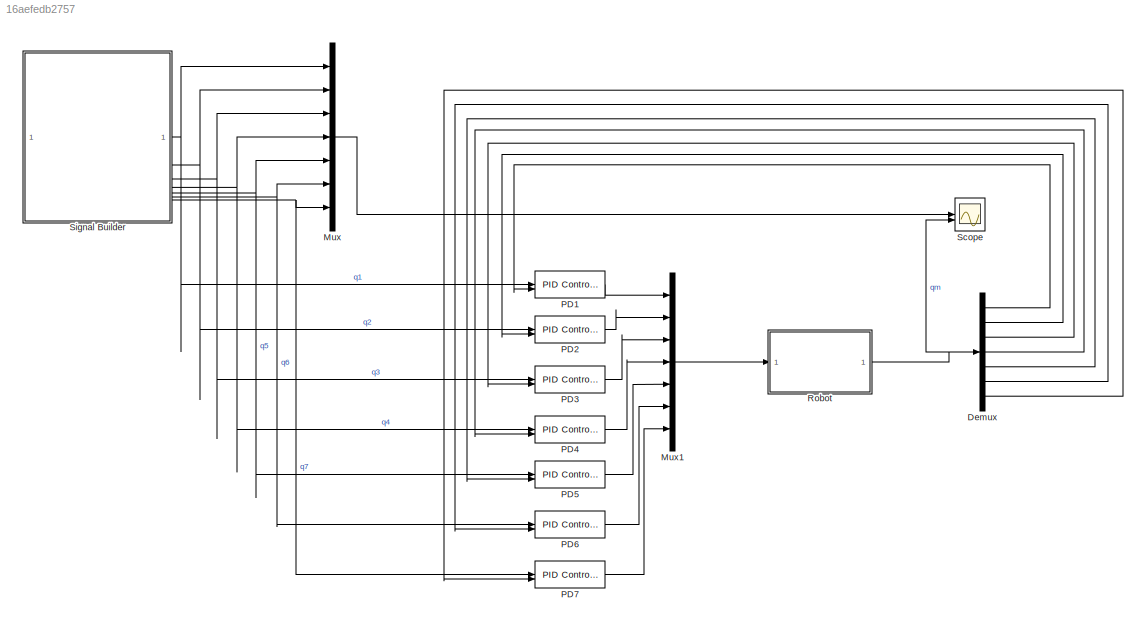
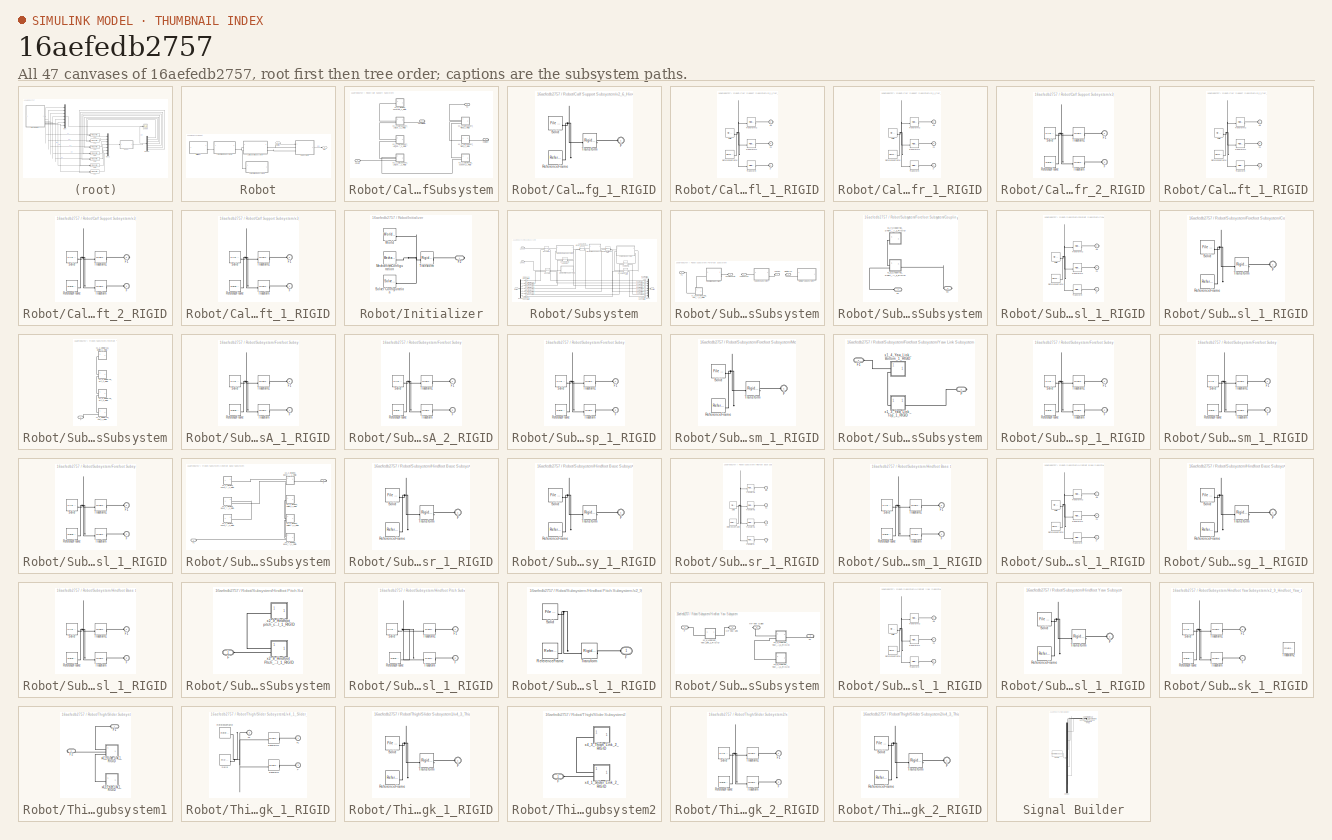
[diagram: thumbnail index - all 47 canvases of the model, root first then tree order]
MODEL slx_16aefedb2757
KIND model
CONFIG AbsTol = auto
CONFIG EnableMultiTasking = off
CONFIG FixedStep = auto
CONFIG MaxStep = auto
CONFIG MinStep = auto
CONFIG RelTol = 1e-3
CONFIG SampleTimeConstraint = Unconstrained
CONFIG SolverName = VariableStepAuto
CONFIG StartTime = 0.0
CONFIG StopTime = 10.0
WORKSPACE source: external: MATLAB File  (data not in archive)
BLOCK [Demux] Demux
  Outputs = 7
BLOCK [Mux] Mux
  DisplayOption = bar
  Inputs = 7
BLOCK [Mux] Mux1
  DisplayOption = bar
  Inputs = 7
BLOCK [Reference] PD1  REF=slpidlib/PID Controller (2DOF)
  SourceBlock = slpidlib/PID Controller (2DOF)
  SourceType = PID 2dof
BLOCK [Reference] PD2  REF=slpidlib/PID Controller (2DOF)
  SourceBlock = slpidlib/PID Controller (2DOF)
  SourceType = PID 2dof
BLOCK [Reference] PD3  REF=slpidlib/PID Controller (2DOF)
  SourceBlock = slpidlib/PID Controller (2DOF)
  SourceType = PID 2dof
BLOCK [Reference] PD4  REF=slpidlib/PID Controller (2DOF)
  SourceBlock = slpidlib/PID Controller (2DOF)
  SourceType = PID 2dof
BLOCK [Reference] PD5  REF=slpidlib/PID Controller (2DOF)
  SourceBlock = slpidlib/PID Controller (2DOF)
  SourceType = PID 2dof
BLOCK [Reference] PD6  REF=slpidlib/PID Controller (2DOF)
  SourceBlock = slpidlib/PID Controller (2DOF)
  SourceType = PID 2dof
BLOCK [Reference] PD7  REF=slpidlib/PID Controller (2DOF)
  SourceBlock = slpidlib/PID Controller (2DOF)
  SourceType = PID 2dof
BLOCK [SubSystem] Robot
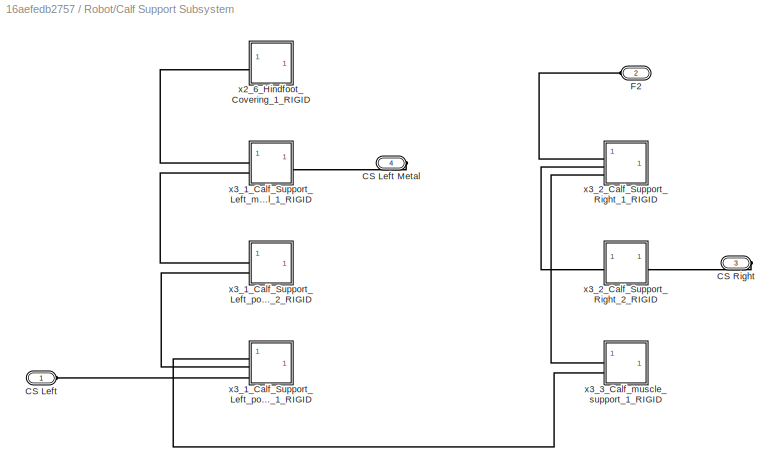
BLOCK [SubSystem] Robot/Calf Support Subsystem
BLOCK [PMIOPort] Robot/Calf Support Subsystem/CS Left 
  Side = Left
BLOCK [PMIOPort] Robot/Calf Support Subsystem/CS Left Metal
  Port = 4
  Side = Right
BLOCK [PMIOPort] Robot/Calf Support Subsystem/CS Right
  Port = 3
  Side = Right
BLOCK [PMIOPort] Robot/Calf Support Subsystem/F2
  Port = 2
  Side = Left
BLOCK [SubSystem] Robot/Calf Support Subsystem/x2_6_Hindfoot_Covering_1_RIGID
BLOCK [PMIOPort] Robot/Calf Support Subsystem/x2_6_Hindfoot_Covering_1_RIGID/F
  Side = Left
BLOCK [Reference] Robot/Calf Support Subsystem/x2_6_Hindfoot_Covering_1_RIGID/ReferenceFrame  REF=sm_lib/Frames and
Transforms/Reference
Frame
  SourceBlock = sm_lib/Frames and\nTransforms/Reference\nFrame
  SourceType = Reference\nFrame
BLOCK [Reference] Robot/Calf Support Subsystem/x2_6_Hindfoot_Covering_1_RIGID/Solid  REF=sm_lib/Body Elements/File Solid
  SourceBlock = sm_lib/Body Elements/File Solid
  SourceType = File Solid
BLOCK [Reference] Robot/Calf Support Subsystem/x2_6_Hindfoot_Covering_1_RIGID/Transform  REF=sm_lib/Frames and
Transforms/Rigid
Transform
  SourceBlock = sm_lib/Frames and\nTransforms/Rigid\nTransform
  SourceType = Rigid\nTransform
BLOCK [SubSystem] Robot/Calf Support Subsystem/x3_1_Calf_Support_Left_metal_1_RIGID
BLOCK [PMIOPort] Robot/Calf Support Subsystem/x3_1_Calf_Support_Left_metal_1_RIGID/F
  Side = Left
BLOCK [PMIOPort] Robot/Calf Support Subsystem/x3_1_Calf_Support_Left_metal_1_RIGID/F1
  Port = 2
  Side = Left
BLOCK [PMIOPort] Robot/Calf Support Subsystem/x3_1_Calf_Support_Left_metal_1_RIGID/F2
  Port = 3
  Side = Right
BLOCK [Reference] Robot/Calf Support Subsystem/x3_1_Calf_Support_Left_metal_1_RIGID/ReferenceFrame  REF=sm_lib/Frames and
Transforms/Reference
Frame
  SourceBlock = sm_lib/Frames and\nTransforms/Reference\nFrame
  SourceType = Reference\nFrame
BLOCK [Reference] Robot/Calf Support Subsystem/x3_1_Calf_Support_Left_metal_1_RIGID/Solid  REF=sm_lib/Body Elements/File Solid
  SourceBlock = sm_lib/Body Elements/File Solid
  SourceType = File Solid
BLOCK [Reference] Robot/Calf Support Subsystem/x3_1_Calf_Support_Left_metal_1_RIGID/Transform  REF=sm_lib/Frames and
Transforms/Rigid
Transform
  SourceBlock = sm_lib/Frames and\nTransforms/Rigid\nTransform
  SourceType = Rigid\nTransform
BLOCK [Reference] Robot/Calf Support Subsystem/x3_1_Calf_Support_Left_metal_1_RIGID/Transform1  REF=sm_lib/Frames and
Transforms/Rigid
Transform
  SourceBlock = sm_lib/Frames and\nTransforms/Rigid\nTransform
  SourceType = Rigid\nTransform
BLOCK [Reference] Robot/Calf Support Subsystem/x3_1_Calf_Support_Left_metal_1_RIGID/Transform2  REF=sm_lib/Frames and
Transforms/Rigid
Transform
  SourceBlock = sm_lib/Frames and\nTransforms/Rigid\nTransform
  SourceType = Rigid\nTransform
BLOCK [SubSystem] Robot/Calf Support Subsystem/x3_1_Calf_Support_Left_poly_upper_1_RIGID
BLOCK [PMIOPort] Robot/Calf Support Subsystem/x3_1_Calf_Support_Left_poly_upper_1_RIGID/F
  Side = Left
BLOCK [PMIOPort] Robot/Calf Support Subsystem/x3_1_Calf_Support_Left_poly_upper_1_RIGID/F1
  Port = 3
  Side = Left
BLOCK [PMIOPort] Robot/Calf Support Subsystem/x3_1_Calf_Support_Left_poly_upper_1_RIGID/F2
  Port = 2
  Side = Left
BLOCK [Reference] Robot/Calf Support Subsystem/x3_1_Calf_Support_Left_poly_upper_1_RIGID/ReferenceFrame  REF=sm_lib/Frames and
Transforms/Reference
Frame
  SourceBlock = sm_lib/Frames and\nTransforms/Reference\nFrame
  SourceType = Reference\nFrame
BLOCK [Reference] Robot/Calf Support Subsystem/x3_1_Calf_Support_Left_poly_upper_1_RIGID/Solid  REF=sm_lib/Body Elements/File Solid
  SourceBlock = sm_lib/Body Elements/File Solid
  SourceType = File Solid
BLOCK [Reference] Robot/Calf Support Subsystem/x3_1_Calf_Support_Left_poly_upper_1_RIGID/Transform  REF=sm_lib/Frames and
Transforms/Rigid
Transform
  SourceBlock = sm_lib/Frames and\nTransforms/Rigid\nTransform
  SourceType = Rigid\nTransform
BLOCK [Reference] Robot/Calf Support Subsystem/x3_1_Calf_Support_Left_poly_upper_1_RIGID/Transform1  REF=sm_lib/Frames and
Transforms/Rigid
Transform
  SourceBlock = sm_lib/Frames and\nTransforms/Rigid\nTransform
  SourceType = Rigid\nTransform
BLOCK [Reference] Robot/Calf Support Subsystem/x3_1_Calf_Support_Left_poly_upper_1_RIGID/Transform2  REF=sm_lib/Frames and
Transforms/Rigid
Transform
  SourceBlock = sm_lib/Frames and\nTransforms/Rigid\nTransform
  SourceType = Rigid\nTransform
BLOCK [SubSystem] Robot/Calf Support Subsystem/x3_1_Calf_Support_Left_poly_upper_2_RIGID
BLOCK [PMIOPort] Robot/Calf Support Subsystem/x3_1_Calf_Support_Left_poly_upper_2_RIGID/F
  Side = Left
BLOCK [PMIOPort] Robot/Calf Support Subsystem/x3_1_Calf_Support_Left_poly_upper_2_RIGID/F1
  Port = 2
  Side = Left
BLOCK [Reference] Robot/Calf Support Subsystem/x3_1_Calf_Support_Left_poly_upper_2_RIGID/ReferenceFrame  REF=sm_lib/Frames and
Transforms/Reference
Frame
  SourceBlock = sm_lib/Frames and\nTransforms/Reference\nFrame
  SourceType = Reference\nFrame
BLOCK [Reference] Robot/Calf Support Subsystem/x3_1_Calf_Support_Left_poly_upper_2_RIGID/Solid  REF=sm_lib/Body Elements/File Solid
  SourceBlock = sm_lib/Body Elements/File Solid
  SourceType = File Solid
BLOCK [Reference] Robot/Calf Support Subsystem/x3_1_Calf_Support_Left_poly_upper_2_RIGID/Transform  REF=sm_lib/Frames and
Transforms/Rigid
Transform
  SourceBlock = sm_lib/Frames and\nTransforms/Rigid\nTransform
  SourceType = Rigid\nTransform
BLOCK [Reference] Robot/Calf Support Subsystem/x3_1_Calf_Support_Left_poly_upper_2_RIGID/Transform1  REF=sm_lib/Frames and
Transforms/Rigid
Transform
  SourceBlock = sm_lib/Frames and\nTransforms/Rigid\nTransform
  SourceType = Rigid\nTransform
BLOCK [SubSystem] Robot/Calf Support Subsystem/x3_2_Calf_Support_Right_1_RIGID
BLOCK [PMIOPort] Robot/Calf Support Subsystem/x3_2_Calf_Support_Right_1_RIGID/F
  Port = 2
  Side = Left
BLOCK [PMIOPort] Robot/Calf Support Subsystem/x3_2_Calf_Support_Right_1_RIGID/F1
  Port = 3
  Side = Left
BLOCK [PMIOPort] Robot/Calf Support Subsystem/x3_2_Calf_Support_Right_1_RIGID/F2
  Side = Left
BLOCK [Reference] Robot/Calf Support Subsystem/x3_2_Calf_Support_Right_1_RIGID/ReferenceFrame  REF=sm_lib/Frames and
Transforms/Reference
Frame
  SourceBlock = sm_lib/Frames and\nTransforms/Reference\nFrame
  SourceType = Reference\nFrame
BLOCK [Reference] Robot/Calf Support Subsystem/x3_2_Calf_Support_Right_1_RIGID/Solid  REF=sm_lib/Body Elements/File Solid
  SourceBlock = sm_lib/Body Elements/File Solid
  SourceType = File Solid
BLOCK [Reference] Robot/Calf Support Subsystem/x3_2_Calf_Support_Right_1_RIGID/Transform  REF=sm_lib/Frames and
Transforms/Rigid
Transform
  SourceBlock = sm_lib/Frames and\nTransforms/Rigid\nTransform
  SourceType = Rigid\nTransform
BLOCK [Reference] Robot/Calf Support Subsystem/x3_2_Calf_Support_Right_1_RIGID/Transform1  REF=sm_lib/Frames and
Transforms/Rigid
Transform
  SourceBlock = sm_lib/Frames and\nTransforms/Rigid\nTransform
  SourceType = Rigid\nTransform
BLOCK [Reference] Robot/Calf Support Subsystem/x3_2_Calf_Support_Right_1_RIGID/Transform2  REF=sm_lib/Frames and
Transforms/Rigid
Transform
  SourceBlock = sm_lib/Frames and\nTransforms/Rigid\nTransform
  SourceType = Rigid\nTransform
BLOCK [SubSystem] Robot/Calf Support Subsystem/x3_2_Calf_Support_Right_2_RIGID
BLOCK [PMIOPort] Robot/Calf Support Subsystem/x3_2_Calf_Support_Right_2_RIGID/F
  Side = Left
BLOCK [PMIOPort] Robot/Calf Support Subsystem/x3_2_Calf_Support_Right_2_RIGID/F1
  Port = 2
  Side = Right
BLOCK [Reference] Robot/Calf Support Subsystem/x3_2_Calf_Support_Right_2_RIGID/ReferenceFrame  REF=sm_lib/Frames and
Transforms/Reference
Frame
  SourceBlock = sm_lib/Frames and\nTransforms/Reference\nFrame
  SourceType = Reference\nFrame
BLOCK [Reference] Robot/Calf Support Subsystem/x3_2_Calf_Support_Right_2_RIGID/Solid  REF=sm_lib/Body Elements/File Solid
  SourceBlock = sm_lib/Body Elements/File Solid
  SourceType = File Solid
BLOCK [Reference] Robot/Calf Support Subsystem/x3_2_Calf_Support_Right_2_RIGID/Transform  REF=sm_lib/Frames and
Transforms/Rigid
Transform
  SourceBlock = sm_lib/Frames and\nTransforms/Rigid\nTransform
  SourceType = Rigid\nTransform
BLOCK [Reference] Robot/Calf Support Subsystem/x3_2_Calf_Support_Right_2_RIGID/Transform1  REF=sm_lib/Frames and
Transforms/Rigid
Transform
  SourceBlock = sm_lib/Frames and\nTransforms/Rigid\nTransform
  SourceType = Rigid\nTransform
BLOCK [SubSystem] Robot/Calf Support Subsystem/x3_3_Calf_muscle_support_1_RIGID
BLOCK [PMIOPort] Robot/Calf Support Subsystem/x3_3_Calf_muscle_support_1_RIGID/F
  Side = Left
BLOCK [PMIOPort] Robot/Calf Support Subsystem/x3_3_Calf_muscle_support_1_RIGID/F1
  Port = 2
  Side = Left
BLOCK [Reference] Robot/Calf Support Subsystem/x3_3_Calf_muscle_support_1_RIGID/ReferenceFrame  REF=sm_lib/Frames and
Transforms/Reference
Frame
  SourceBlock = sm_lib/Frames and\nTransforms/Reference\nFrame
  SourceType = Reference\nFrame
BLOCK [Reference] Robot/Calf Support Subsystem/x3_3_Calf_muscle_support_1_RIGID/Solid  REF=sm_lib/Body Elements/File Solid
  SourceBlock = sm_lib/Body Elements/File Solid
  SourceType = File Solid
BLOCK [Reference] Robot/Calf Support Subsystem/x3_3_Calf_muscle_support_1_RIGID/Transform  REF=sm_lib/Frames and
Transforms/Rigid
Transform
  SourceBlock = sm_lib/Frames and\nTransforms/Rigid\nTransform
  SourceType = Rigid\nTransform
BLOCK [Reference] Robot/Calf Support Subsystem/x3_3_Calf_muscle_support_1_RIGID/Transform1  REF=sm_lib/Frames and
Transforms/Rigid
Transform
  SourceBlock = sm_lib/Frames and\nTransforms/Rigid\nTransform
  SourceType = Rigid\nTransform
BLOCK [SubSystem] Robot/Initializer
BLOCK [PMIOPort] Robot/Initializer/F2
  Side = Right
BLOCK [Reference] Robot/Initializer/MechanismConfiguration  REF=sm_lib/Utilities/Mechanism
Configuration
  SourceBlock = sm_lib/Utilities/Mechanism\nConfiguration
  SourceType = Mechanism\nConfiguration
BLOCK [Reference] Robot/Initializer/Solver Configuration  REF=nesl_utility/Solver
Configuration
  SourceBlock = nesl_utility/Solver\nConfiguration
  SourceType = Solver\nConfiguration
BLOCK [Reference] Robot/Initializer/Transform  REF=sm_lib/Frames and
Transforms/Rigid
Transform
  SourceBlock = sm_lib/Frames and\nTransforms/Rigid\nTransform
  SourceType = Rigid\nTransform
BLOCK [Reference] Robot/Initializer/World  REF=sm_lib/Frames and
Transforms/World Frame
  SourceBlock = sm_lib/Frames and\nTransforms/World Frame
  SourceType = World Frame
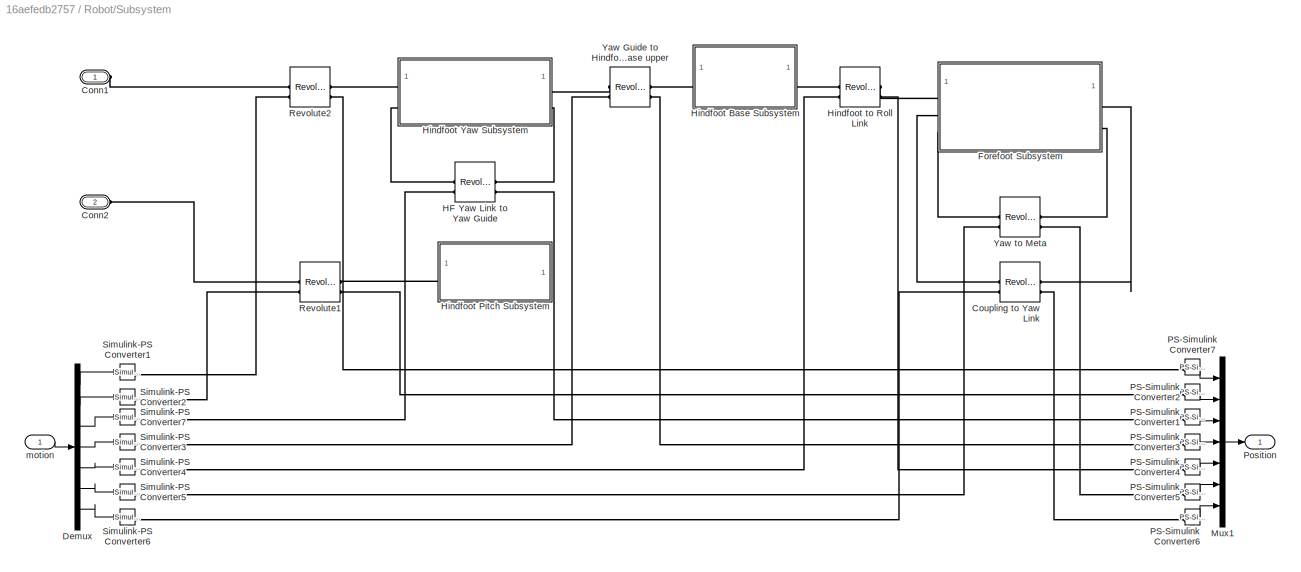
BLOCK [SubSystem] Robot/Subsystem
BLOCK [PMIOPort] Robot/Subsystem/Conn1
  Side = Left
BLOCK [PMIOPort] Robot/Subsystem/Conn2
  Port = 2
  Side = Left
BLOCK [Reference] Robot/Subsystem/Coupling to Yaw Link  REF=sm_lib/Joints/Revolute Joint
  SourceBlock = sm_lib/Joints/Revolute Joint
  SourceType = Revolute Joint
BLOCK [Demux] Robot/Subsystem/Demux
  Outputs = 7
BLOCK [SubSystem] Robot/Subsystem/Forefoot Subsystem
BLOCK [PMIOPort] Robot/Subsystem/Forefoot Subsystem/Coupling Shaft
  Port = 2
  Side = Left
BLOCK [SubSystem] Robot/Subsystem/Forefoot Subsystem/Coupling Subsystem
BLOCK [PMIOPort] Robot/Subsystem/Forefoot Subsystem/Coupling Subsystem/F1
  Port = 2
  Side = Left
BLOCK [PMIOPort] Robot/Subsystem/Forefoot Subsystem/Coupling Subsystem/F2
  Side = Right
BLOCK [SubSystem] Robot/Subsystem/Forefoot Subsystem/Coupling Subsystem/x1_6_Coupling_Shaft_Metal_1_RIGID
BLOCK [PMIOPort] Robot/Subsystem/Forefoot Subsystem/Coupling Subsystem/x1_6_Coupling_Shaft_Metal_1_RIGID/F
  Side = Left
BLOCK [PMIOPort] Robot/Subsystem/Forefoot Subsystem/Coupling Subsystem/x1_6_Coupling_Shaft_Metal_1_RIGID/F1
  Port = 2
  Side = Left
BLOCK [PMIOPort] Robot/Subsystem/Forefoot Subsystem/Coupling Subsystem/x1_6_Coupling_Shaft_Metal_1_RIGID/F2
  Port = 3
  Side = Right
BLOCK [Reference] Robot/Subsystem/Forefoot Subsystem/Coupling Subsystem/x1_6_Coupling_Shaft_Metal_1_RIGID/ReferenceFrame  REF=sm_lib/Frames and
Transforms/Reference
Frame
  SourceBlock = sm_lib/Frames and\nTransforms/Reference\nFrame
  SourceType = Reference\nFrame
BLOCK [Reference] Robot/Subsystem/Forefoot Subsystem/Coupling Subsystem/x1_6_Coupling_Shaft_Metal_1_RIGID/Solid  REF=sm_lib/Body Elements/File Solid
  SourceBlock = sm_lib/Body Elements/File Solid
  SourceType = File Solid
BLOCK [Reference] Robot/Subsystem/Forefoot Subsystem/Coupling Subsystem/x1_6_Coupling_Shaft_Metal_1_RIGID/Transform  REF=sm_lib/Frames and
Transforms/Rigid
Transform
  SourceBlock = sm_lib/Frames and\nTransforms/Rigid\nTransform
  SourceType = Rigid\nTransform
BLOCK [Reference] Robot/Subsystem/Forefoot Subsystem/Coupling Subsystem/x1_6_Coupling_Shaft_Metal_1_RIGID/Transform1  REF=sm_lib/Frames and
Transforms/Rigid
Transform
  SourceBlock = sm_lib/Frames and\nTransforms/Rigid\nTransform
  SourceType = Rigid\nTransform
BLOCK [Reference] Robot/Subsystem/Forefoot Subsystem/Coupling Subsystem/x1_6_Coupling_Shaft_Metal_1_RIGID/Transform2  REF=sm_lib/Frames and
Transforms/Rigid
Transform
  SourceBlock = sm_lib/Frames and\nTransforms/Rigid\nTransform
  SourceType = Rigid\nTransform
BLOCK [SubSystem] Robot/Subsystem/Forefoot Subsystem/Coupling Subsystem/x1_7_Coupling_Shaft_Cap_Metal_1_RIGID
BLOCK [PMIOPort] Robot/Subsystem/Forefoot Subsystem/Coupling Subsystem/x1_7_Coupling_Shaft_Cap_Metal_1_RIGID/F
  Side = Left
BLOCK [Reference] Robot/Subsystem/Forefoot Subsystem/Coupling Subsystem/x1_7_Coupling_Shaft_Cap_Metal_1_RIGID/ReferenceFrame  REF=sm_lib/Frames and
Transforms/Reference
Frame
  SourceBlock = sm_lib/Frames and\nTransforms/Reference\nFrame
  SourceType = Reference\nFrame
BLOCK [Reference] Robot/Subsystem/Forefoot Subsystem/Coupling Subsystem/x1_7_Coupling_Shaft_Cap_Metal_1_RIGID/Solid  REF=sm_lib/Body Elements/File Solid
  SourceBlock = sm_lib/Body Elements/File Solid
  SourceType = File Solid
BLOCK [Reference] Robot/Subsystem/Forefoot Subsystem/Coupling Subsystem/x1_7_Coupling_Shaft_Cap_Metal_1_RIGID/Transform  REF=sm_lib/Frames and
Transforms/Rigid
Transform
  SourceBlock = sm_lib/Frames and\nTransforms/Rigid\nTransform
  SourceType = Rigid\nTransform
BLOCK [PMIOPort] Robot/Subsystem/Forefoot Subsystem/F1
  Side = Left
BLOCK [PMIOPort] Robot/Subsystem/Forefoot Subsystem/Metatarsal
  Port = 5
  Side = Right
BLOCK [SubSystem] Robot/Subsystem/Forefoot Subsystem/Metatarsal Subsystem
BLOCK [PMIOPort] Robot/Subsystem/Forefoot Subsystem/Metatarsal Subsystem/F
  Side = Left
BLOCK [SubSystem] Robot/Subsystem/Forefoot Subsystem/Metatarsal Subsystem/x1_0_Metatarsal_SLA_1_RIGID
BLOCK [PMIOPort] Robot/Subsystem/Forefoot Subsystem/Metatarsal Subsystem/x1_0_Metatarsal_SLA_1_RIGID/F
  Side = Left
BLOCK [PMIOPort] Robot/Subsystem/Forefoot Subsystem/Metatarsal Subsystem/x1_0_Metatarsal_SLA_1_RIGID/F1
  Port = 2
  Side = Left
BLOCK [Reference] Robot/Subsystem/Forefoot Subsystem/Metatarsal Subsystem/x1_0_Metatarsal_SLA_1_RIGID/ReferenceFrame  REF=sm_lib/Frames and
Transforms/Reference
Frame
  SourceBlock = sm_lib/Frames and\nTransforms/Reference\nFrame
  SourceType = Reference\nFrame
BLOCK [Reference] Robot/Subsystem/Forefoot Subsystem/Metatarsal Subsystem/x1_0_Metatarsal_SLA_1_RIGID/Solid  REF=sm_lib/Body Elements/File Solid
  SourceBlock = sm_lib/Body Elements/File Solid
  SourceType = File Solid
BLOCK [Reference] Robot/Subsystem/Forefoot Subsystem/Metatarsal Subsystem/x1_0_Metatarsal_SLA_1_RIGID/Transform  REF=sm_lib/Frames and
Transforms/Rigid
Transform
  SourceBlock = sm_lib/Frames and\nTransforms/Rigid\nTransform
  SourceType = Rigid\nTransform
BLOCK [Reference] Robot/Subsystem/Forefoot Subsystem/Metatarsal Subsystem/x1_0_Metatarsal_SLA_1_RIGID/Transform1  REF=sm_lib/Frames and
Transforms/Rigid
Transform
  SourceBlock = sm_lib/Frames and\nTransforms/Rigid\nTransform
  SourceType = Rigid\nTransform
BLOCK [SubSystem] Robot/Subsystem/Forefoot Subsystem/Metatarsal Subsystem/x1_0_Metatarsal_SLA_2_RIGID
BLOCK [PMIOPort] Robot/Subsystem/Forefoot Subsystem/Metatarsal Subsystem/x1_0_Metatarsal_SLA_2_RIGID/F
  Port = 2
  Side = Left
BLOCK [PMIOPort] Robot/Subsystem/Forefoot Subsystem/Metatarsal Subsystem/x1_0_Metatarsal_SLA_2_RIGID/F1
  Side = Left
BLOCK [Reference] Robot/Subsystem/Forefoot Subsystem/Metatarsal Subsystem/x1_0_Metatarsal_SLA_2_RIGID/ReferenceFrame  REF=sm_lib/Frames and
Transforms/Reference
Frame
  SourceBlock = sm_lib/Frames and\nTransforms/Reference\nFrame
  SourceType = Reference\nFrame
BLOCK [Reference] Robot/Subsystem/Forefoot Subsystem/Metatarsal Subsystem/x1_0_Metatarsal_SLA_2_RIGID/Solid  REF=sm_lib/Body Elements/File Solid
  SourceBlock = sm_lib/Body Elements/File Solid
  SourceType = File Solid
BLOCK [Reference] Robot/Subsystem/Forefoot Subsystem/Metatarsal Subsystem/x1_0_Metatarsal_SLA_2_RIGID/Transform  REF=sm_lib/Frames and
Transforms/Rigid
Transform
  SourceBlock = sm_lib/Frames and\nTransforms/Rigid\nTransform
  SourceType = Rigid\nTransform
BLOCK [Reference] Robot/Subsystem/Forefoot Subsystem/Metatarsal Subsystem/x1_0_Metatarsal_SLA_2_RIGID/Transform1  REF=sm_lib/Frames and
Transforms/Rigid
Transform
  SourceBlock = sm_lib/Frames and\nTransforms/Rigid\nTransform
  SourceType = Rigid\nTransform
BLOCK [SubSystem] Robot/Subsystem/Forefoot Subsystem/Metatarsal Subsystem/x1_1_Metatarsal_Top_1_RIGID
BLOCK [PMIOPort] Robot/Subsystem/Forefoot Subsystem/Metatarsal Subsystem/x1_1_Metatarsal_Top_1_RIGID/F
  Port = 2
  Side = Left
BLOCK [PMIOPort] Robot/Subsystem/Forefoot Subsystem/Metatarsal Subsystem/x1_1_Metatarsal_Top_1_RIGID/F1
  Side = Left
BLOCK [Reference] Robot/Subsystem/Forefoot Subsystem/Metatarsal Subsystem/x1_1_Metatarsal_Top_1_RIGID/ReferenceFrame  REF=sm_lib/Frames and
Transforms/Reference
Frame
  SourceBlock = sm_lib/Frames and\nTransforms/Reference\nFrame
  SourceType = Reference\nFrame
BLOCK [Reference] Robot/Subsystem/Forefoot Subsystem/Metatarsal Subsystem/x1_1_Metatarsal_Top_1_RIGID/Solid  REF=sm_lib/Body Elements/File Solid
  SourceBlock = sm_lib/Body Elements/File Solid
  SourceType = File Solid
BLOCK [Reference] Robot/Subsystem/Forefoot Subsystem/Metatarsal Subsystem/x1_1_Metatarsal_Top_1_RIGID/Transform  REF=sm_lib/Frames and
Transforms/Rigid
Transform
  SourceBlock = sm_lib/Frames and\nTransforms/Rigid\nTransform
  SourceType = Rigid\nTransform
BLOCK [Reference] Robot/Subsystem/Forefoot Subsystem/Metatarsal Subsystem/x1_1_Metatarsal_Top_1_RIGID/Transform1  REF=sm_lib/Frames and
Transforms/Rigid
Transform
  SourceBlock = sm_lib/Frames and\nTransforms/Rigid\nTransform
  SourceType = Rigid\nTransform
BLOCK [SubSystem] Robot/Subsystem/Forefoot Subsystem/Metatarsal Subsystem/x1_2_Metatarsal_Bottom_1_RIGID
BLOCK [PMIOPort] Robot/Subsystem/Forefoot Subsystem/Metatarsal Subsystem/x1_2_Metatarsal_Bottom_1_RIGID/F
  Side = Left
BLOCK [Reference] Robot/Subsystem/Forefoot Subsystem/Metatarsal Subsystem/x1_2_Metatarsal_Bottom_1_RIGID/ReferenceFrame  REF=sm_lib/Frames and
Transforms/Reference
Frame
  SourceBlock = sm_lib/Frames and\nTransforms/Reference\nFrame
  SourceType = Reference\nFrame
BLOCK [Reference] Robot/Subsystem/Forefoot Subsystem/Metatarsal Subsystem/x1_2_Metatarsal_Bottom_1_RIGID/Solid  REF=sm_lib/Body Elements/File Solid
  SourceBlock = sm_lib/Body Elements/File Solid
  SourceType = File Solid
BLOCK [Reference] Robot/Subsystem/Forefoot Subsystem/Metatarsal Subsystem/x1_2_Metatarsal_Bottom_1_RIGID/Transform  REF=sm_lib/Frames and
Transforms/Rigid
Transform
  SourceBlock = sm_lib/Frames and\nTransforms/Rigid\nTransform
  SourceType = Rigid\nTransform
BLOCK [PMIOPort] Robot/Subsystem/Forefoot Subsystem/Yaw Link
  Port = 3
  Side = Left
BLOCK [SubSystem] Robot/Subsystem/Forefoot Subsystem/Yaw Link Subsystem
BLOCK [PMIOPort] Robot/Subsystem/Forefoot Subsystem/Yaw Link Subsystem/F
  Port = 2
  Side = Right
BLOCK [PMIOPort] Robot/Subsystem/Forefoot Subsystem/Yaw Link Subsystem/F1
  Side = Left
BLOCK [SubSystem] Robot/Subsystem/Forefoot Subsystem/Yaw Link Subsystem/x1_3_Yaw_Link_Top_1_RIGID
BLOCK [PMIOPort] Robot/Subsystem/Forefoot Subsystem/Yaw Link Subsystem/x1_3_Yaw_Link_Top_1_RIGID/F
  Port = 2
  Side = Right
BLOCK [PMIOPort] Robot/Subsystem/Forefoot Subsystem/Yaw Link Subsystem/x1_3_Yaw_Link_Top_1_RIGID/F1
  Side = Left
BLOCK [Reference] Robot/Subsystem/Forefoot Subsystem/Yaw Link Subsystem/x1_3_Yaw_Link_Top_1_RIGID/ReferenceFrame  REF=sm_lib/Frames and
Transforms/Reference
Frame
  SourceBlock = sm_lib/Frames and\nTransforms/Reference\nFrame
  SourceType = Reference\nFrame
BLOCK [Reference] Robot/Subsystem/Forefoot Subsystem/Yaw Link Subsystem/x1_3_Yaw_Link_Top_1_RIGID/Solid  REF=sm_lib/Body Elements/File Solid
  SourceBlock = sm_lib/Body Elements/File Solid
  SourceType = File Solid
BLOCK [Reference] Robot/Subsystem/Forefoot Subsystem/Yaw Link Subsystem/x1_3_Yaw_Link_Top_1_RIGID/Transform  REF=sm_lib/Frames and
Transforms/Rigid
Transform
  SourceBlock = sm_lib/Frames and\nTransforms/Rigid\nTransform
  SourceType = Rigid\nTransform
BLOCK [Reference] Robot/Subsystem/Forefoot Subsystem/Yaw Link Subsystem/x1_3_Yaw_Link_Top_1_RIGID/Transform1  REF=sm_lib/Frames and
Transforms/Rigid
Transform
  SourceBlock = sm_lib/Frames and\nTransforms/Rigid\nTransform
  SourceType = Rigid\nTransform
BLOCK [SubSystem] Robot/Subsystem/Forefoot Subsystem/Yaw Link Subsystem/x1_4_Yaw_Link_Bottom_1_RIGID
BLOCK [PMIOPort] Robot/Subsystem/Forefoot Subsystem/Yaw Link Subsystem/x1_4_Yaw_Link_Bottom_1_RIGID/F
  Port = 2
  Side = Left
BLOCK [PMIOPort] Robot/Subsystem/Forefoot Subsystem/Yaw Link Subsystem/x1_4_Yaw_Link_Bottom_1_RIGID/F1
  Side = Left
BLOCK [Reference] Robot/Subsystem/Forefoot Subsystem/Yaw Link Subsystem/x1_4_Yaw_Link_Bottom_1_RIGID/ReferenceFrame  REF=sm_lib/Frames and
Transforms/Reference
Frame
  SourceBlock = sm_lib/Frames and\nTransforms/Reference\nFrame
  SourceType = Reference\nFrame
BLOCK [Reference] Robot/Subsystem/Forefoot Subsystem/Yaw Link Subsystem/x1_4_Yaw_Link_Bottom_1_RIGID/Solid  REF=sm_lib/Body Elements/File Solid
  SourceBlock = sm_lib/Body Elements/File Solid
  SourceType = File Solid
BLOCK [Reference] Robot/Subsystem/Forefoot Subsystem/Yaw Link Subsystem/x1_4_Yaw_Link_Bottom_1_RIGID/Transform  REF=sm_lib/Frames and
Transforms/Rigid
Transform
  SourceBlock = sm_lib/Frames and\nTransforms/Rigid\nTransform
  SourceType = Rigid\nTransform
BLOCK [Reference] Robot/Subsystem/Forefoot Subsystem/Yaw Link Subsystem/x1_4_Yaw_Link_Bottom_1_RIGID/Transform1  REF=sm_lib/Frames and
Transforms/Rigid
Transform
  SourceBlock = sm_lib/Frames and\nTransforms/Rigid\nTransform
  SourceType = Rigid\nTransform
BLOCK [PMIOPort] Robot/Subsystem/Forefoot Subsystem/Yaw Link Top
  Port = 4
  Side = Right
BLOCK [SubSystem] Robot/Subsystem/Forefoot Subsystem/x1_5_Forefoot_Roll_Link_metal_1_RIGID
BLOCK [PMIOPort] Robot/Subsystem/Forefoot Subsystem/x1_5_Forefoot_Roll_Link_metal_1_RIGID/F
  Side = Left
BLOCK [PMIOPort] Robot/Subsystem/Forefoot Subsystem/x1_5_Forefoot_Roll_Link_metal_1_RIGID/F1
  Port = 2
  Side = Left
BLOCK [Reference] Robot/Subsystem/Forefoot Subsystem/x1_5_Forefoot_Roll_Link_metal_1_RIGID/ReferenceFrame  REF=sm_lib/Frames and
Transforms/Reference
Frame
  SourceBlock = sm_lib/Frames and\nTransforms/Reference\nFrame
  SourceType = Reference\nFrame
BLOCK [Reference] Robot/Subsystem/Forefoot Subsystem/x1_5_Forefoot_Roll_Link_metal_1_RIGID/Solid  REF=sm_lib/Body Elements/File Solid
  SourceBlock = sm_lib/Body Elements/File Solid
  SourceType = File Solid
BLOCK [Reference] Robot/Subsystem/Forefoot Subsystem/x1_5_Forefoot_Roll_Link_metal_1_RIGID/Transform  REF=sm_lib/Frames and
Transforms/Rigid
Transform
  SourceBlock = sm_lib/Frames and\nTransforms/Rigid\nTransform
  SourceType = Rigid\nTransform
BLOCK [Reference] Robot/Subsystem/Forefoot Subsystem/x1_5_Forefoot_Roll_Link_metal_1_RIGID/Transform1  REF=sm_lib/Frames and
Transforms/Rigid
Transform
  SourceBlock = sm_lib/Frames and\nTransforms/Rigid\nTransform
  SourceType = Rigid\nTransform
BLOCK [Reference] Robot/Subsystem/HF Yaw Link to Yaw Guide  REF=sm_lib/Joints/Revolute Joint
  SourceBlock = sm_lib/Joints/Revolute Joint
  SourceType = Revolute Joint
BLOCK [SubSystem] Robot/Subsystem/Hindfoot Base Subsystem
BLOCK [PMIOPort] Robot/Subsystem/Hindfoot Base Subsystem/F
  Side = Right
BLOCK [PMIOPort] Robot/Subsystem/Hindfoot Base Subsystem/F1
  Port = 2
  Side = Left
BLOCK [SubSystem] Robot/Subsystem/Hindfoot Base Subsystem/x2_1_Hindfoot_base_lower_1_RIGID
BLOCK [PMIOPort] Robot/Subsystem/Hindfoot Base Subsystem/x2_1_Hindfoot_base_lower_1_RIGID/F
  Side = Left
BLOCK [Reference] Robot/Subsystem/Hindfoot Base Subsystem/x2_1_Hindfoot_base_lower_1_RIGID/ReferenceFrame  REF=sm_lib/Frames and
Transforms/Reference
Frame
  SourceBlock = sm_lib/Frames and\nTransforms/Reference\nFrame
  SourceType = Reference\nFrame
BLOCK [Reference] Robot/Subsystem/Hindfoot Base Subsystem/x2_1_Hindfoot_base_lower_1_RIGID/Solid  REF=sm_lib/Body Elements/File Solid
  SourceBlock = sm_lib/Body Elements/File Solid
  SourceType = File Solid
BLOCK [Reference] Robot/Subsystem/Hindfoot Base Subsystem/x2_1_Hindfoot_base_lower_1_RIGID/Transform  REF=sm_lib/Frames and
Transforms/Rigid
Transform
  SourceBlock = sm_lib/Frames and\nTransforms/Rigid\nTransform
  SourceType = Rigid\nTransform
BLOCK [SubSystem] Robot/Subsystem/Hindfoot Base Subsystem/x2_1_Hindfoot_base_lower_Metal_Copy_1_RIGID
BLOCK [PMIOPort] Robot/Subsystem/Hindfoot Base Subsystem/x2_1_Hindfoot_base_lower_Metal_Copy_1_RIGID/F
  Side = Left
BLOCK [Reference] Robot/Subsystem/Hindfoot Base Subsystem/x2_1_Hindfoot_base_lower_Metal_Copy_1_RIGID/ReferenceFrame  REF=sm_lib/Frames and
Transforms/Reference
Frame
  SourceBlock = sm_lib/Frames and\nTransforms/Reference\nFrame
  SourceType = Reference\nFrame
BLOCK [Reference] Robot/Subsystem/Hindfoot Base Subsystem/x2_1_Hindfoot_base_lower_Metal_Copy_1_RIGID/Solid  REF=sm_lib/Body Elements/File Solid
  SourceBlock = sm_lib/Body Elements/File Solid
  SourceType = File Solid
BLOCK [Reference] Robot/Subsystem/Hindfoot Base Subsystem/x2_1_Hindfoot_base_lower_Metal_Copy_1_RIGID/Transform  REF=sm_lib/Frames and
Transforms/Rigid
Transform
  SourceBlock = sm_lib/Frames and\nTransforms/Rigid\nTransform
  SourceType = Rigid\nTransform
BLOCK [SubSystem] Robot/Subsystem/Hindfoot Base Subsystem/x2_2_Hindfoot_Base_Upper_1_RIGID
BLOCK [PMIOPort] Robot/Subsystem/Hindfoot Base Subsystem/x2_2_Hindfoot_Base_Upper_1_RIGID/F
  Port = 4
  Side = Right
BLOCK [PMIOPort] Robot/Subsystem/Hindfoot Base Subsystem/x2_2_Hindfoot_Base_Upper_1_RIGID/F1
  Port = 3
  Side = Left
BLOCK [PMIOPort] Robot/Subsystem/Hindfoot Base Subsystem/x2_2_Hindfoot_Base_Upper_1_RIGID/F2
  Port = 2
  Side = Left
BLOCK [PMIOPort] Robot/Subsystem/Hindfoot Base Subsystem/x2_2_Hindfoot_Base_Upper_1_RIGID/F3
  Side = Left
BLOCK [Reference] Robot/Subsystem/Hindfoot Base Subsystem/x2_2_Hindfoot_Base_Upper_1_RIGID/ReferenceFrame  REF=sm_lib/Frames and
Transforms/Reference
Frame
  SourceBlock = sm_lib/Frames and\nTransforms/Reference\nFrame
  SourceType = Reference\nFrame
BLOCK [Reference] Robot/Subsystem/Hindfoot Base Subsystem/x2_2_Hindfoot_Base_Upper_1_RIGID/Solid  REF=sm_lib/Body Elements/File Solid
  SourceBlock = sm_lib/Body Elements/File Solid
  SourceType = File Solid
BLOCK [Reference] Robot/Subsystem/Hindfoot Base Subsystem/x2_2_Hindfoot_Base_Upper_1_RIGID/Transform  REF=sm_lib/Frames and
Transforms/Rigid
Transform
  SourceBlock = sm_lib/Frames and\nTransforms/Rigid\nTransform
  SourceType = Rigid\nTransform
BLOCK [Reference] Robot/Subsystem/Hindfoot Base Subsystem/x2_2_Hindfoot_Base_Upper_1_RIGID/Transform1  REF=sm_lib/Frames and
Transforms/Rigid
Transform
  SourceBlock = sm_lib/Frames and\nTransforms/Rigid\nTransform
  SourceType = Rigid\nTransform
BLOCK [Reference] Robot/Subsystem/Hindfoot Base Subsystem/x2_2_Hindfoot_Base_Upper_1_RIGID/Transform2  REF=sm_lib/Frames and
Transforms/Rigid
Transform
  SourceBlock = sm_lib/Frames and\nTransforms/Rigid\nTransform
  SourceType = Rigid\nTransform
BLOCK [Reference] Robot/Subsystem/Hindfoot Base Subsystem/x2_2_Hindfoot_Base_Upper_1_RIGID/Transform3  REF=sm_lib/Frames and
Transforms/Rigid
Transform
  SourceBlock = sm_lib/Frames and\nTransforms/Rigid\nTransform
  SourceType = Rigid\nTransform
BLOCK [SubSystem] Robot/Subsystem/Hindfoot Base Subsystem/x2_2_Hindfoot_Base_Upper_Metal_Bottom_1_RIGID
BLOCK [PMIOPort] Robot/Subsystem/Hindfoot Base Subsystem/x2_2_Hindfoot_Base_Upper_Metal_Bottom_1_RIGID/F
  Side = Left
BLOCK [PMIOPort] Robot/Subsystem/Hindfoot Base Subsystem/x2_2_Hindfoot_Base_Upper_Metal_Bottom_1_RIGID/F1
  Port = 2
  Side = Left
BLOCK [Reference] Robot/Subsystem/Hindfoot Base Subsystem/x2_2_Hindfoot_Base_Upper_Metal_Bottom_1_RIGID/ReferenceFrame  REF=sm_lib/Frames and
Transforms/Reference
Frame
  SourceBlock = sm_lib/Frames and\nTransforms/Reference\nFrame
  SourceType = Reference\nFrame
BLOCK [Reference] Robot/Subsystem/Hindfoot Base Subsystem/x2_2_Hindfoot_Base_Upper_Metal_Bottom_1_RIGID/Solid  REF=sm_lib/Body Elements/File Solid
  SourceBlock = sm_lib/Body Elements/File Solid
  SourceType = File Solid
BLOCK [Reference] Robot/Subsystem/Hindfoot Base Subsystem/x2_2_Hindfoot_Base_Upper_Metal_Bottom_1_RIGID/Transform  REF=sm_lib/Frames and
Transforms/Rigid
Transform
  SourceBlock = sm_lib/Frames and\nTransforms/Rigid\nTransform
  SourceType = Rigid\nTransform
BLOCK [Reference] Robot/Subsystem/Hindfoot Base Subsystem/x2_2_Hindfoot_Base_Upper_Metal_Bottom_1_RIGID/Transform1  REF=sm_lib/Frames and
Transforms/Rigid
Transform
  SourceBlock = sm_lib/Frames and\nTransforms/Rigid\nTransform
  SourceType = Rigid\nTransform
BLOCK [SubSystem] Robot/Subsystem/Hindfoot Base Subsystem/x2_2_Hindfoot_Base_Upper_Metal_Roll_1_RIGID
BLOCK [PMIOPort] Robot/Subsystem/Hindfoot Base Subsystem/x2_2_Hindfoot_Base_Upper_Metal_Roll_1_RIGID/F
  Port = 3
  Side = Left
BLOCK [PMIOPort] Robot/Subsystem/Hindfoot Base Subsystem/x2_2_Hindfoot_Base_Upper_Metal_Roll_1_RIGID/F1
  Port = 2
  Side = Left
BLOCK [PMIOPort] Robot/Subsystem/Hindfoot Base Subsystem/x2_2_Hindfoot_Base_Upper_Metal_Roll_1_RIGID/F2
  Side = Left
BLOCK [Reference] Robot/Subsystem/Hindfoot Base Subsystem/x2_2_Hindfoot_Base_Upper_Metal_Roll_1_RIGID/ReferenceFrame  REF=sm_lib/Frames and
Transforms/Reference
Frame
  SourceBlock = sm_lib/Frames and\nTransforms/Reference\nFrame
  SourceType = Reference\nFrame
BLOCK [Reference] Robot/Subsystem/Hindfoot Base Subsystem/x2_2_Hindfoot_Base_Upper_Metal_Roll_1_RIGID/Solid  REF=sm_lib/Body Elements/File Solid
  SourceBlock = sm_lib/Body Elements/File Solid
  SourceType = File Solid
BLOCK [Reference] Robot/Subsystem/Hindfoot Base Subsystem/x2_2_Hindfoot_Base_Upper_Metal_Roll_1_RIGID/Transform  REF=sm_lib/Frames and
Transforms/Rigid
Transform
  SourceBlock = sm_lib/Frames and\nTransforms/Rigid\nTransform
  SourceType = Rigid\nTransform
BLOCK [Reference] Robot/Subsystem/Hindfoot Base Subsystem/x2_2_Hindfoot_Base_Upper_Metal_Roll_1_RIGID/Transform1  REF=sm_lib/Frames and
Transforms/Rigid
Transform
  SourceBlock = sm_lib/Frames and\nTransforms/Rigid\nTransform
  SourceType = Rigid\nTransform
BLOCK [Reference] Robot/Subsystem/Hindfoot Base Subsystem/x2_2_Hindfoot_Base_Upper_Metal_Roll_1_RIGID/Transform2  REF=sm_lib/Frames and
Transforms/Rigid
Transform
  SourceBlock = sm_lib/Frames and\nTransforms/Rigid\nTransform
  SourceType = Rigid\nTransform
BLOCK [SubSystem] Robot/Subsystem/Hindfoot Base Subsystem/x2_3_Hindfoot_Rolling_1_RIGID
BLOCK [PMIOPort] Robot/Subsystem/Hindfoot Base Subsystem/x2_3_Hindfoot_Rolling_1_RIGID/F
  Side = Left
BLOCK [Reference] Robot/Subsystem/Hindfoot Base Subsystem/x2_3_Hindfoot_Rolling_1_RIGID/ReferenceFrame  REF=sm_lib/Frames and
Transforms/Reference
Frame
  SourceBlock = sm_lib/Frames and\nTransforms/Reference\nFrame
  SourceType = Reference\nFrame
BLOCK [Reference] Robot/Subsystem/Hindfoot Base Subsystem/x2_3_Hindfoot_Rolling_1_RIGID/Solid  REF=sm_lib/Body Elements/File Solid
  SourceBlock = sm_lib/Body Elements/File Solid
  SourceType = File Solid
BLOCK [Reference] Robot/Subsystem/Hindfoot Base Subsystem/x2_3_Hindfoot_Rolling_1_RIGID/Transform  REF=sm_lib/Frames and
Transforms/Rigid
Transform
  SourceBlock = sm_lib/Frames and\nTransforms/Rigid\nTransform
  SourceType = Rigid\nTransform
BLOCK [SubSystem] Robot/Subsystem/Hindfoot Base Subsystem/x2_3_Hindfoot_Rolling_Metal_1_RIGID
BLOCK [PMIOPort] Robot/Subsystem/Hindfoot Base Subsystem/x2_3_Hindfoot_Rolling_Metal_1_RIGID/F
  Port = 2
  Side = Left
BLOCK [PMIOPort] Robot/Subsystem/Hindfoot Base Subsystem/x2_3_Hindfoot_Rolling_Metal_1_RIGID/F1
  Side = Left
BLOCK [Reference] Robot/Subsystem/Hindfoot Base Subsystem/x2_3_Hindfoot_Rolling_Metal_1_RIGID/ReferenceFrame  REF=sm_lib/Frames and
Transforms/Reference
Frame
  SourceBlock = sm_lib/Frames and\nTransforms/Reference\nFrame
  SourceType = Reference\nFrame
BLOCK [Reference] Robot/Subsystem/Hindfoot Base Subsystem/x2_3_Hindfoot_Rolling_Metal_1_RIGID/Solid  REF=sm_lib/Body Elements/File Solid
  SourceBlock = sm_lib/Body Elements/File Solid
  SourceType = File Solid
BLOCK [Reference] Robot/Subsystem/Hindfoot Base Subsystem/x2_3_Hindfoot_Rolling_Metal_1_RIGID/Transform  REF=sm_lib/Frames and
Transforms/Rigid
Transform
  SourceBlock = sm_lib/Frames and\nTransforms/Rigid\nTransform
  SourceType = Rigid\nTransform
BLOCK [Reference] Robot/Subsystem/Hindfoot Base Subsystem/x2_3_Hindfoot_Rolling_Metal_1_RIGID/Transform1  REF=sm_lib/Frames and
Transforms/Rigid
Transform
  SourceBlock = sm_lib/Frames and\nTransforms/Rigid\nTransform
  SourceType = Rigid\nTransform
BLOCK [SubSystem] Robot/Subsystem/Hindfoot Pitch Subsystem
BLOCK [PMIOPort] Robot/Subsystem/Hindfoot Pitch Subsystem/F
  Side = Left
BLOCK [SubSystem] Robot/Subsystem/Hindfoot Pitch Subsystem/x2_8_Hindfoot_Pitch_Pin_metal_1_RIGID
BLOCK [PMIOPort] Robot/Subsystem/Hindfoot Pitch Subsystem/x2_8_Hindfoot_Pitch_Pin_metal_1_RIGID/F
  Port = 2
  Side = Left
BLOCK [PMIOPort] Robot/Subsystem/Hindfoot Pitch Subsystem/x2_8_Hindfoot_Pitch_Pin_metal_1_RIGID/F1
  Side = Left
BLOCK [Reference] Robot/Subsystem/Hindfoot Pitch Subsystem/x2_8_Hindfoot_Pitch_Pin_metal_1_RIGID/ReferenceFrame  REF=sm_lib/Frames and
Transforms/Reference
Frame
  SourceBlock = sm_lib/Frames and\nTransforms/Reference\nFrame
  SourceType = Reference\nFrame
BLOCK [Reference] Robot/Subsystem/Hindfoot Pitch Subsystem/x2_8_Hindfoot_Pitch_Pin_metal_1_RIGID/Solid  REF=sm_lib/Body Elements/File Solid
  SourceBlock = sm_lib/Body Elements/File Solid
  SourceType = File Solid
BLOCK [Reference] Robot/Subsystem/Hindfoot Pitch Subsystem/x2_8_Hindfoot_Pitch_Pin_metal_1_RIGID/Transform  REF=sm_lib/Frames and
Transforms/Rigid
Transform
  SourceBlock = sm_lib/Frames and\nTransforms/Rigid\nTransform
  SourceType = Rigid\nTransform
BLOCK [Reference] Robot/Subsystem/Hindfoot Pitch Subsystem/x2_8_Hindfoot_Pitch_Pin_metal_1_RIGID/Transform1  REF=sm_lib/Frames and
Transforms/Rigid
Transform
  SourceBlock = sm_lib/Frames and\nTransforms/Rigid\nTransform
  SourceType = Rigid\nTransform
BLOCK [SubSystem] Robot/Subsystem/Hindfoot Pitch Subsystem/x2_9_Hindfoot_pitch_cap_metal_1_RIGID
BLOCK [PMIOPort] Robot/Subsystem/Hindfoot Pitch Subsystem/x2_9_Hindfoot_pitch_cap_metal_1_RIGID/F
  Side = Left
BLOCK [Reference] Robot/Subsystem/Hindfoot Pitch Subsystem/x2_9_Hindfoot_pitch_cap_metal_1_RIGID/ReferenceFrame  REF=sm_lib/Frames and
Transforms/Reference
Frame
  SourceBlock = sm_lib/Frames and\nTransforms/Reference\nFrame
  SourceType = Reference\nFrame
BLOCK [Reference] Robot/Subsystem/Hindfoot Pitch Subsystem/x2_9_Hindfoot_pitch_cap_metal_1_RIGID/Solid  REF=sm_lib/Body Elements/File Solid
  SourceBlock = sm_lib/Body Elements/File Solid
  SourceType = File Solid
BLOCK [Reference] Robot/Subsystem/Hindfoot Pitch Subsystem/x2_9_Hindfoot_pitch_cap_metal_1_RIGID/Transform  REF=sm_lib/Frames and
Transforms/Rigid
Transform
  SourceBlock = sm_lib/Frames and\nTransforms/Rigid\nTransform
  SourceType = Rigid\nTransform
BLOCK [SubSystem] Robot/Subsystem/Hindfoot Yaw Subsystem
BLOCK [PMIOPort] Robot/Subsystem/Hindfoot Yaw Subsystem/F
  Side = Left
BLOCK [PMIOPort] Robot/Subsystem/Hindfoot Yaw Subsystem/F2
  Port = 2
  Side = Right
BLOCK [PMIOPort] Robot/Subsystem/Hindfoot Yaw Subsystem/HF Yaw Guide
  Port = 3
  Side = Right
BLOCK [PMIOPort] Robot/Subsystem/Hindfoot Yaw Subsystem/HF Yaw Link
  Port = 4
  Side = Left
BLOCK [SubSystem] Robot/Subsystem/Hindfoot Yaw Subsystem/x2_4_Hindfoot_Yaw_Guide_2_Metal_1_RIGID
BLOCK [PMIOPort] Robot/Subsystem/Hindfoot Yaw Subsystem/x2_4_Hindfoot_Yaw_Guide_2_Metal_1_RIGID/F
  Port = 2
  Side = Left
BLOCK [PMIOPort] Robot/Subsystem/Hindfoot Yaw Subsystem/x2_4_Hindfoot_Yaw_Guide_2_Metal_1_RIGID/F1
  Side = Left
BLOCK [PMIOPort] Robot/Subsystem/Hindfoot Yaw Subsystem/x2_4_Hindfoot_Yaw_Guide_2_Metal_1_RIGID/F2
  Port = 3
  Side = Right
BLOCK [Reference] Robot/Subsystem/Hindfoot Yaw Subsystem/x2_4_Hindfoot_Yaw_Guide_2_Metal_1_RIGID/ReferenceFrame  REF=sm_lib/Frames and
Transforms/Reference
Frame
  SourceBlock = sm_lib/Frames and\nTransforms/Reference\nFrame
  SourceType = Reference\nFrame
BLOCK [Reference] Robot/Subsystem/Hindfoot Yaw Subsystem/x2_4_Hindfoot_Yaw_Guide_2_Metal_1_RIGID/Solid  REF=sm_lib/Body Elements/File Solid
  SourceBlock = sm_lib/Body Elements/File Solid
  SourceType = File Solid
BLOCK [Reference] Robot/Subsystem/Hindfoot Yaw Subsystem/x2_4_Hindfoot_Yaw_Guide_2_Metal_1_RIGID/Transform  REF=sm_lib/Frames and
Transforms/Rigid
Transform
  SourceBlock = sm_lib/Frames and\nTransforms/Rigid\nTransform
  SourceType = Rigid\nTransform
BLOCK [Reference] Robot/Subsystem/Hindfoot Yaw Subsystem/x2_4_Hindfoot_Yaw_Guide_2_Metal_1_RIGID/Transform1  REF=sm_lib/Frames and
Transforms/Rigid
Transform
  SourceBlock = sm_lib/Frames and\nTransforms/Rigid\nTransform
  SourceType = Rigid\nTransform
BLOCK [Reference] Robot/Subsystem/Hindfoot Yaw Subsystem/x2_4_Hindfoot_Yaw_Guide_2_Metal_1_RIGID/Transform2  REF=sm_lib/Frames and
Transforms/Rigid
Transform
  SourceBlock = sm_lib/Frames and\nTransforms/Rigid\nTransform
  SourceType = Rigid\nTransform
BLOCK [SubSystem] Robot/Subsystem/Hindfoot Yaw Subsystem/x2_5_Hindfoot_Yaw_Guide_1_Metal_1_RIGID
BLOCK [PMIOPort] Robot/Subsystem/Hindfoot Yaw Subsystem/x2_5_Hindfoot_Yaw_Guide_1_Metal_1_RIGID/F
  Side = Left
BLOCK [Reference] Robot/Subsystem/Hindfoot Yaw Subsystem/x2_5_Hindfoot_Yaw_Guide_1_Metal_1_RIGID/ReferenceFrame  REF=sm_lib/Frames and
Transforms/Reference
Frame
  SourceBlock = sm_lib/Frames and\nTransforms/Reference\nFrame
  SourceType = Reference\nFrame
BLOCK [Reference] Robot/Subsystem/Hindfoot Yaw Subsystem/x2_5_Hindfoot_Yaw_Guide_1_Metal_1_RIGID/Solid  REF=sm_lib/Body Elements/File Solid
  SourceBlock = sm_lib/Body Elements/File Solid
  SourceType = File Solid
BLOCK [Reference] Robot/Subsystem/Hindfoot Yaw Subsystem/x2_5_Hindfoot_Yaw_Guide_1_Metal_1_RIGID/Transform  REF=sm_lib/Frames and
Transforms/Rigid
Transform
  SourceBlock = sm_lib/Frames and\nTransforms/Rigid\nTransform
  SourceType = Rigid\nTransform
BLOCK [SubSystem] Robot/Subsystem/Hindfoot Yaw Subsystem/x2_9_Hindfoot_Yaw_Link_1_RIGID
BLOCK [PMIOPort] Robot/Subsystem/Hindfoot Yaw Subsystem/x2_9_Hindfoot_Yaw_Link_1_RIGID/F
  Side = Left
BLOCK [PMIOPort] Robot/Subsystem/Hindfoot Yaw Subsystem/x2_9_Hindfoot_Yaw_Link_1_RIGID/F1
  Port = 2
  Side = Right
BLOCK [Reference] Robot/Subsystem/Hindfoot Yaw Subsystem/x2_9_Hindfoot_Yaw_Link_1_RIGID/ReferenceFrame  REF=sm_lib/Frames and
Transforms/Reference
Frame
  SourceBlock = sm_lib/Frames and\nTransforms/Reference\nFrame
  SourceType = Reference\nFrame
BLOCK [Reference] Robot/Subsystem/Hindfoot Yaw Subsystem/x2_9_Hindfoot_Yaw_Link_1_RIGID/Solid  REF=sm_lib/Body Elements/File Solid
  SourceBlock = sm_lib/Body Elements/File Solid
  SourceType = File Solid
BLOCK [Reference] Robot/Subsystem/Hindfoot Yaw Subsystem/x2_9_Hindfoot_Yaw_Link_1_RIGID/Transform  REF=sm_lib/Frames and
Transforms/Rigid
Transform
  SourceBlock = sm_lib/Frames and\nTransforms/Rigid\nTransform
  SourceType = Rigid\nTransform
BLOCK [Reference] Robot/Subsystem/Hindfoot Yaw Subsystem/x2_9_Hindfoot_Yaw_Link_1_RIGID/Transform1  REF=sm_lib/Frames and
Transforms/Rigid
Transform
  SourceBlock = sm_lib/Frames and\nTransforms/Rigid\nTransform
  SourceType = Rigid\nTransform
BLOCK [Reference] Robot/Subsystem/Hindfoot Yaw Subsystem/x2_9_Hindfoot_Yaw_Link_1_RIGID/Transform2  REF=sm_lib/Frames and
Transforms/Rigid
Transform
  Commented = on
  SourceBlock = sm_lib/Frames and\nTransforms/Rigid\nTransform
  SourceType = Rigid\nTransform
BLOCK [Reference] Robot/Subsystem/Hindfoot to Roll Link  REF=sm_lib/Joints/Revolute Joint
  SourceBlock = sm_lib/Joints/Revolute Joint
  SourceType = Revolute Joint
BLOCK [Mux] Robot/Subsystem/Mux1
  DisplayOption = bar
  Inputs = 7
BLOCK [Reference] Robot/Subsystem/PS-Simulink Converter1  REF=nesl_utility/PS-Simulink
Converter
  SourceBlock = nesl_utility/PS-Simulink\nConverter
  SourceType = PS-Simulink\nConverter
BLOCK [Reference] Robot/Subsystem/PS-Simulink Converter2  REF=nesl_utility/PS-Simulink
Converter
  SourceBlock = nesl_utility/PS-Simulink\nConverter
  SourceType = PS-Simulink\nConverter
BLOCK [Reference] Robot/Subsystem/PS-Simulink Converter3  REF=nesl_utility/PS-Simulink
Converter
  SourceBlock = nesl_utility/PS-Simulink\nConverter
  SourceType = PS-Simulink\nConverter
BLOCK [Reference] Robot/Subsystem/PS-Simulink Converter4  REF=nesl_utility/PS-Simulink
Converter
  SourceBlock = nesl_utility/PS-Simulink\nConverter
  SourceType = PS-Simulink\nConverter
BLOCK [Reference] Robot/Subsystem/PS-Simulink Converter5  REF=nesl_utility/PS-Simulink
Converter
  SourceBlock = nesl_utility/PS-Simulink\nConverter
  SourceType = PS-Simulink\nConverter
BLOCK [Reference] Robot/Subsystem/PS-Simulink Converter6  REF=nesl_utility/PS-Simulink
Converter
  SourceBlock = nesl_utility/PS-Simulink\nConverter
  SourceType = PS-Simulink\nConverter
BLOCK [Reference] Robot/Subsystem/PS-Simulink Converter7  REF=nesl_utility/PS-Simulink
Converter
  SourceBlock = nesl_utility/PS-Simulink\nConverter
  SourceType = PS-Simulink\nConverter
BLOCK [Outport] Robot/Subsystem/Position
BLOCK [Reference] Robot/Subsystem/Revolute1  REF=sm_lib/Joints/Revolute Joint
  SourceBlock = sm_lib/Joints/Revolute Joint
  SourceType = Revolute Joint
BLOCK [Reference] Robot/Subsystem/Revolute2  REF=sm_lib/Joints/Revolute Joint
  SourceBlock = sm_lib/Joints/Revolute Joint
  SourceType = Revolute Joint
BLOCK [Reference] Robot/Subsystem/Simulink-PS Converter1  REF=nesl_utility/Simulink-PS
Converter
  SourceBlock = nesl_utility/Simulink-PS\nConverter
  SourceType = Simulink-PS\nConverter
BLOCK [Reference] Robot/Subsystem/Simulink-PS Converter2  REF=nesl_utility/Simulink-PS
Converter
  SourceBlock = nesl_utility/Simulink-PS\nConverter
  SourceType = Simulink-PS\nConverter
BLOCK [Reference] Robot/Subsystem/Simulink-PS Converter3  REF=nesl_utility/Simulink-PS
Converter
  SourceBlock = nesl_utility/Simulink-PS\nConverter
  SourceType = Simulink-PS\nConverter
BLOCK [Reference] Robot/Subsystem/Simulink-PS Converter4  REF=nesl_utility/Simulink-PS
Converter
  SourceBlock = nesl_utility/Simulink-PS\nConverter
  SourceType = Simulink-PS\nConverter
BLOCK [Reference] Robot/Subsystem/Simulink-PS Converter5  REF=nesl_utility/Simulink-PS
Converter
  SourceBlock = nesl_utility/Simulink-PS\nConverter
  SourceType = Simulink-PS\nConverter
BLOCK [Reference] Robot/Subsystem/Simulink-PS Converter6  REF=nesl_utility/Simulink-PS
Converter
  SourceBlock = nesl_utility/Simulink-PS\nConverter
  SourceType = Simulink-PS\nConverter
BLOCK [Reference] Robot/Subsystem/Simulink-PS Converter7  REF=nesl_utility/Simulink-PS
Converter
  SourceBlock = nesl_utility/Simulink-PS\nConverter
  SourceType = Simulink-PS\nConverter
BLOCK [Reference] Robot/Subsystem/Yaw Guide to Hindfoot Base upper  REF=sm_lib/Joints/Revolute Joint
  SourceBlock = sm_lib/Joints/Revolute Joint
  SourceType = Revolute Joint
BLOCK [Reference] Robot/Subsystem/Yaw to Meta  REF=sm_lib/Joints/Revolute Joint
  SourceBlock = sm_lib/Joints/Revolute Joint
  SourceType = Revolute Joint
BLOCK [Inport] Robot/Subsystem/motion
BLOCK [SubSystem] Robot/Thigh//Slider Subsystem1
BLOCK [PMIOPort] Robot/Thigh//Slider Subsystem1/F1
  Side = Left
BLOCK [PMIOPort] Robot/Thigh//Slider Subsystem1/F2
  Port = 2
  Side = Right
BLOCK [SubSystem] Robot/Thigh//Slider Subsystem1/x4_1_Slider_Link_1_RIGID
BLOCK [PMIOPort] Robot/Thigh//Slider Subsystem1/x4_1_Slider_Link_1_RIGID/F
  Port = 3
  Side = Left
BLOCK [PMIOPort] Robot/Thigh//Slider Subsystem1/x4_1_Slider_Link_1_RIGID/F1
  Side = Left
BLOCK [PMIOPort] Robot/Thigh//Slider Subsystem1/x4_1_Slider_Link_1_RIGID/F2
  Port = 2
  Side = Left
BLOCK [Reference] Robot/Thigh//Slider Subsystem1/x4_1_Slider_Link_1_RIGID/ReferenceFrame  REF=sm_lib/Frames and
Transforms/Reference
Frame
  SourceBlock = sm_lib/Frames and\nTransforms/Reference\nFrame
  SourceType = Reference\nFrame
BLOCK [Reference] Robot/Thigh//Slider Subsystem1/x4_1_Slider_Link_1_RIGID/Solid  REF=sm_lib/Body Elements/File Solid
  SourceBlock = sm_lib/Body Elements/File Solid
  SourceType = File Solid
BLOCK [Reference] Robot/Thigh//Slider Subsystem1/x4_1_Slider_Link_1_RIGID/Transform  REF=sm_lib/Frames and
Transforms/Rigid
Transform
  SourceBlock = sm_lib/Frames and\nTransforms/Rigid\nTransform
  SourceType = Rigid\nTransform
BLOCK [Reference] Robot/Thigh//Slider Subsystem1/x4_1_Slider_Link_1_RIGID/Transform1  REF=sm_lib/Frames and
Transforms/Rigid
Transform
  SourceBlock = sm_lib/Frames and\nTransforms/Rigid\nTransform
  SourceType = Rigid\nTransform
BLOCK [SubSystem] Robot/Thigh//Slider Subsystem1/x4_3_Thigh_Link_1_RIGID
BLOCK [PMIOPort] Robot/Thigh//Slider Subsystem1/x4_3_Thigh_Link_1_RIGID/F
  Side = Left
BLOCK [Reference] Robot/Thigh//Slider Subsystem1/x4_3_Thigh_Link_1_RIGID/ReferenceFrame  REF=sm_lib/Frames and
Transforms/Reference
Frame
  SourceBlock = sm_lib/Frames and\nTransforms/Reference\nFrame
  SourceType = Reference\nFrame
BLOCK [Reference] Robot/Thigh//Slider Subsystem1/x4_3_Thigh_Link_1_RIGID/Solid  REF=sm_lib/Body Elements/File Solid
  SourceBlock = sm_lib/Body Elements/File Solid
  SourceType = File Solid
BLOCK [Reference] Robot/Thigh//Slider Subsystem1/x4_3_Thigh_Link_1_RIGID/Transform  REF=sm_lib/Frames and
Transforms/Rigid
Transform
  SourceBlock = sm_lib/Frames and\nTransforms/Rigid\nTransform
  SourceType = Rigid\nTransform
BLOCK [SubSystem] Robot/Thigh//Slider Subsystem2
BLOCK [PMIOPort] Robot/Thigh//Slider Subsystem2/F
  Side = Left
BLOCK [SubSystem] Robot/Thigh//Slider Subsystem2/x4_1_Slider_Link_2_RIGID
BLOCK [PMIOPort] Robot/Thigh//Slider Subsystem2/x4_1_Slider_Link_2_RIGID/F
  Port = 2
  Side = Left
BLOCK [PMIOPort] Robot/Thigh//Slider Subsystem2/x4_1_Slider_Link_2_RIGID/F1
  Side = Left
BLOCK [Reference] Robot/Thigh//Slider Subsystem2/x4_1_Slider_Link_2_RIGID/ReferenceFrame  REF=sm_lib/Frames and
Transforms/Reference
Frame
  SourceBlock = sm_lib/Frames and\nTransforms/Reference\nFrame
  SourceType = Reference\nFrame
BLOCK [Reference] Robot/Thigh//Slider Subsystem2/x4_1_Slider_Link_2_RIGID/Solid  REF=sm_lib/Body Elements/File Solid
  SourceBlock = sm_lib/Body Elements/File Solid
  SourceType = File Solid
BLOCK [Reference] Robot/Thigh//Slider Subsystem2/x4_1_Slider_Link_2_RIGID/Transform  REF=sm_lib/Frames and
Transforms/Rigid
Transform
  SourceBlock = sm_lib/Frames and\nTransforms/Rigid\nTransform
  SourceType = Rigid\nTransform
BLOCK [Reference] Robot/Thigh//Slider Subsystem2/x4_1_Slider_Link_2_RIGID/Transform1  REF=sm_lib/Frames and
Transforms/Rigid
Transform
  SourceBlock = sm_lib/Frames and\nTransforms/Rigid\nTransform
  SourceType = Rigid\nTransform
BLOCK [SubSystem] Robot/Thigh//Slider Subsystem2/x4_3_Thigh_Link_2_RIGID
BLOCK [PMIOPort] Robot/Thigh//Slider Subsystem2/x4_3_Thigh_Link_2_RIGID/F
  Side = Left
BLOCK [Reference] Robot/Thigh//Slider Subsystem2/x4_3_Thigh_Link_2_RIGID/ReferenceFrame  REF=sm_lib/Frames and
Transforms/Reference
Frame
  SourceBlock = sm_lib/Frames and\nTransforms/Reference\nFrame
  SourceType = Reference\nFrame
BLOCK [Reference] Robot/Thigh//Slider Subsystem2/x4_3_Thigh_Link_2_RIGID/Solid  REF=sm_lib/Body Elements/File Solid
  SourceBlock = sm_lib/Body Elements/File Solid
  SourceType = File Solid
BLOCK [Reference] Robot/Thigh//Slider Subsystem2/x4_3_Thigh_Link_2_RIGID/Transform  REF=sm_lib/Frames and
Transforms/Rigid
Transform
  SourceBlock = sm_lib/Frames and\nTransforms/Rigid\nTransform
  SourceType = Rigid\nTransform
BLOCK [Inport] Robot/motion
BLOCK [Outport] Robot/qm
BLOCK [Scope] Scope
  Floating = off
  NumInputPorts = 2
  ScopeSpecificationString = Simulink.scopes.TimeScopeBlockCfg('CurrentConfiguration', extmgr.ConfigurationSet(extmgr.Configuration('Core','General UI',true),extmgr.Configuration('Core','Source UI',true),extmgr.Configuration('Sources','WiredSimulink',true),extmgr.Configuration('Visuals','Time Domain',true,'SerializedDisplays',{struct('MinYLimReal','-0.0625','MaxYLimReal','0.5625','YLabelReal','','MinYLimMag','0.00000','MaxYLi...<+2014ch>
BLOCK [SubSystem] Signal Builder
  ClipboardFcn = sigbuilder_block('clipboard');
  CloseFcn = sigbuilder_block('close');
  ContinueFcn = sigbuilder_block('continue');
  CopyFcn = sigbuilder_block('copy');
  DeleteFcn = sigbuilder_block('delete');
  LoadFcn = sigbuilder_block('load');
  MaskHideContents = on
  ModelCloseFcn = sigbuilder_block('modelClose');
  NameChangeFcn = sigbuilder_block('namechange');
  OpenFcn = sigbuilder_block('open',[172.8 115.2 550.8 400.2 ]);
  PauseFcn = sigbuilder_block('pause');
  PreSaveFcn = sigbuilder_block('preSave');
  StartFcn = sigbuilder_block('start');
  StopFcn = sigbuilder_block('stop');
  Tag = STV Subsys
BLOCK [Outport] Signal Builder/Coupling to Yaw
  Port = 7
  Tag = STV Outport
BLOCK [Demux] Signal Builder/Demux
  DisplayOption = none
  Outputs = 7
  Tag = STV Demux
BLOCK [FromWorkspace] Signal Builder/FromWs
  Tag = STV FromWs
  VariableName = tuvar
BLOCK [Outport] Signal Builder/HF Yaw L to G
  Port = 3
  Tag = STV Outport
BLOCK [Outport] Signal Builder/HF to Roll
  Port = 5
  Tag = STV Outport
BLOCK [Outport] Signal Builder/Revolute1
  Port = 2
  Tag = STV Outport
BLOCK [Outport] Signal Builder/Revolute2
  Tag = STV Outport
BLOCK [Outport] Signal Builder/Yaw Guide to HFBU
  Port = 4
  Tag = STV Outport
BLOCK [Outport] Signal Builder/Yaw to Meta
  Port = 6
  Tag = STV Outport
LINE Demux:1 -> PD1:2
LINE Demux:2 -> PD2:2
LINE Demux:3 -> PD3:2
LINE Demux:4 -> PD4:2
LINE Demux:5 -> PD5:2
LINE Demux:6 -> PD6:2
LINE Demux:7 -> PD7:2
LINE Mux1:1 -> Robot:1
LINE Mux:1 -> Scope:1
LINE PD1:1 -> Mux1:1
LINE PD2:1 -> Mux1:2
LINE PD3:1 -> Mux1:3
LINE PD4:1 -> Mux1:4
LINE PD5:1 -> Mux1:5
LINE PD6:1 -> Mux1:6
LINE PD7:1 -> Mux1:7
LINE Robot/Subsystem/Demux:1 -> Robot/Subsystem/Simulink-PS Converter1:1
LINE Robot/Subsystem/Demux:2 -> Robot/Subsystem/Simulink-PS Converter2:1
LINE Robot/Subsystem/Demux:3 -> Robot/Subsystem/Simulink-PS Converter7:1
LINE Robot/Subsystem/Demux:4 -> Robot/Subsystem/Simulink-PS Converter3:1
LINE Robot/Subsystem/Demux:5 -> Robot/Subsystem/Simulink-PS Converter4:1
LINE Robot/Subsystem/Demux:6 -> Robot/Subsystem/Simulink-PS Converter5:1
LINE Robot/Subsystem/Demux:7 -> Robot/Subsystem/Simulink-PS Converter6:1
LINE Robot/Subsystem/Mux1:1 -> Robot/Subsystem/Position:1
LINE Robot/Subsystem/PS-Simulink Converter1:1 -> Robot/Subsystem/Mux1:3
LINE Robot/Subsystem/PS-Simulink Converter2:1 -> Robot/Subsystem/Mux1:2
LINE Robot/Subsystem/PS-Simulink Converter3:1 -> Robot/Subsystem/Mux1:4
LINE Robot/Subsystem/PS-Simulink Converter4:1 -> Robot/Subsystem/Mux1:5
LINE Robot/Subsystem/PS-Simulink Converter5:1 -> Robot/Subsystem/Mux1:6
LINE Robot/Subsystem/PS-Simulink Converter6:1 -> Robot/Subsystem/Mux1:7
LINE Robot/Subsystem/PS-Simulink Converter7:1 -> Robot/Subsystem/Mux1:1
LINE Robot/Subsystem/motion:1 -> Robot/Subsystem/Demux:1
LINE Robot/Subsystem:1 -> Robot/qm:1
LINE Robot/motion:1 -> Robot/Subsystem:1
NET Robot:1 -> Demux:1, Scope:2
NET Signal Builder:1 -> Mux:1, PD1:1
NET Signal Builder:2 -> Mux:2, PD2:1
NET Signal Builder:3 -> Mux:3, PD3:1
NET Signal Builder:4 -> Mux:4, PD4:1
NET Signal Builder:5 -> Mux:5, PD5:1
NET Signal Builder:6 -> Mux:6, PD6:1
NET Signal Builder:7 -> Mux:7, PD7:1
PLINE Robot/Calf Support Subsystem/CS Left :RConn1 -- Robot/Calf Support Subsystem/x3_1_Calf_Support_Left_poly_upper_1_RIGID:LConn3
PLINE Robot/Calf Support Subsystem/CS Left Metal:RConn1 -- Robot/Calf Support Subsystem/x3_1_Calf_Support_Left_metal_1_RIGID:RConn1
PLINE Robot/Calf Support Subsystem/CS Right:RConn1 -- Robot/Calf Support Subsystem/x3_2_Calf_Support_Right_2_RIGID:RConn1
PLINE Robot/Calf Support Subsystem/F2:RConn1 -- Robot/Calf Support Subsystem/x3_2_Calf_Support_Right_1_RIGID:LConn1
PLINE Robot/Calf Support Subsystem/x2_6_Hindfoot_Covering_1_RIGID/F:RConn1 -- Robot/Calf Support Subsystem/x2_6_Hindfoot_Covering_1_RIGID/Transform:RConn1
PNET net1: Robot/Calf Support Subsystem/x2_6_Hindfoot_Covering_1_RIGID/ReferenceFrame:RConn1 -- Robot/Calf Support Subsystem/x2_6_Hindfoot_Covering_1_RIGID/Solid:RConn1 -- Robot/Calf Support Subsystem/x2_6_Hindfoot_Covering_1_RIGID/Transform:LConn1
PLINE Robot/Calf Support Subsystem/x2_6_Hindfoot_Covering_1_RIGID:LConn1 -- Robot/Calf Support Subsystem/x3_1_Calf_Support_Left_metal_1_RIGID:LConn1
PLINE Robot/Calf Support Subsystem/x3_1_Calf_Support_Left_metal_1_RIGID/F1:RConn1 -- Robot/Calf Support Subsystem/x3_1_Calf_Support_Left_metal_1_RIGID/Transform1:RConn1
PLINE Robot/Calf Support Subsystem/x3_1_Calf_Support_Left_metal_1_RIGID/F2:RConn1 -- Robot/Calf Support Subsystem/x3_1_Calf_Support_Left_metal_1_RIGID/Transform2:RConn1
PLINE Robot/Calf Support Subsystem/x3_1_Calf_Support_Left_metal_1_RIGID/F:RConn1 -- Robot/Calf Support Subsystem/x3_1_Calf_Support_Left_metal_1_RIGID/Transform:RConn1
PNET net2: Robot/Calf Support Subsystem/x3_1_Calf_Support_Left_metal_1_RIGID/ReferenceFrame:RConn1 -- Robot/Calf Support Subsystem/x3_1_Calf_Support_Left_metal_1_RIGID/Solid:RConn1 -- Robot/Calf Support Subsystem/x3_1_Calf_Support_Left_metal_1_RIGID/Transform1:LConn1 -- Robot/Calf Support Subsystem/x3_1_Calf_Support_Left_metal_1_RIGID/Transform2:LConn1 -- Robot/Calf Support Subsystem/x3_1_Calf_Support_Left_metal_1_RIGID/Transform:LConn1
PLINE Robot/Calf Support Subsystem/x3_1_Calf_Support_Left_metal_1_RIGID:LConn2 -- Robot/Calf Support Subsystem/x3_1_Calf_Support_Left_poly_upper_2_RIGID:LConn1
PLINE Robot/Calf Support Subsystem/x3_1_Calf_Support_Left_poly_upper_1_RIGID/F1:RConn1 -- Robot/Calf Support Subsystem/x3_1_Calf_Support_Left_poly_upper_1_RIGID/Transform1:RConn1
PLINE Robot/Calf Support Subsystem/x3_1_Calf_Support_Left_poly_upper_1_RIGID/F2:RConn1 -- Robot/Calf Support Subsystem/x3_1_Calf_Support_Left_poly_upper_1_RIGID/Transform2:RConn1
PLINE Robot/Calf Support Subsystem/x3_1_Calf_Support_Left_poly_upper_1_RIGID/F:RConn1 -- Robot/Calf Support Subsystem/x3_1_Calf_Support_Left_poly_upper_1_RIGID/Transform:RConn1
PNET net3: Robot/Calf Support Subsystem/x3_1_Calf_Support_Left_poly_upper_1_RIGID/ReferenceFrame:RConn1 -- Robot/Calf Support Subsystem/x3_1_Calf_Support_Left_poly_upper_1_RIGID/Solid:RConn1 -- Robot/Calf Support Subsystem/x3_1_Calf_Support_Left_poly_upper_1_RIGID/Transform1:LConn1 -- Robot/Calf Support Subsystem/x3_1_Calf_Support_Left_poly_upper_1_RIGID/Transform2:LConn1 -- Robot/Calf Support Subsystem/x3_1_Calf_Support_Left_poly_upper_1_RIGID/Transform:LConn1
PLINE Robot/Calf Support Subsystem/x3_1_Calf_Support_Left_poly_upper_1_RIGID:LConn1 -- Robot/Calf Support Subsystem/x3_3_Calf_muscle_support_1_RIGID:LConn2
PLINE Robot/Calf Support Subsystem/x3_1_Calf_Support_Left_poly_upper_1_RIGID:LConn2 -- Robot/Calf Support Subsystem/x3_1_Calf_Support_Left_poly_upper_2_RIGID:LConn2
PLINE Robot/Calf Support Subsystem/x3_1_Calf_Support_Left_poly_upper_2_RIGID/F1:RConn1 -- Robot/Calf Support Subsystem/x3_1_Calf_Support_Left_poly_upper_2_RIGID/Transform1:RConn1
PLINE Robot/Calf Support Subsystem/x3_1_Calf_Support_Left_poly_upper_2_RIGID/F:RConn1 -- Robot/Calf Support Subsystem/x3_1_Calf_Support_Left_poly_upper_2_RIGID/Transform:RConn1
PNET net4: Robot/Calf Support Subsystem/x3_1_Calf_Support_Left_poly_upper_2_RIGID/ReferenceFrame:RConn1 -- Robot/Calf Support Subsystem/x3_1_Calf_Support_Left_poly_upper_2_RIGID/Solid:RConn1 -- Robot/Calf Support Subsystem/x3_1_Calf_Support_Left_poly_upper_2_RIGID/Transform1:LConn1 -- Robot/Calf Support Subsystem/x3_1_Calf_Support_Left_poly_upper_2_RIGID/Transform:LConn1
PLINE Robot/Calf Support Subsystem/x3_2_Calf_Support_Right_1_RIGID/F1:RConn1 -- Robot/Calf Support Subsystem/x3_2_Calf_Support_Right_1_RIGID/Transform1:RConn1
PLINE Robot/Calf Support Subsystem/x3_2_Calf_Support_Right_1_RIGID/F2:RConn1 -- Robot/Calf Support Subsystem/x3_2_Calf_Support_Right_1_RIGID/Transform2:RConn1
PLINE Robot/Calf Support Subsystem/x3_2_Calf_Support_Right_1_RIGID/F:RConn1 -- Robot/Calf Support Subsystem/x3_2_Calf_Support_Right_1_RIGID/Transform:RConn1
PNET net5: Robot/Calf Support Subsystem/x3_2_Calf_Support_Right_1_RIGID/ReferenceFrame:RConn1 -- Robot/Calf Support Subsystem/x3_2_Calf_Support_Right_1_RIGID/Solid:RConn1 -- Robot/Calf Support Subsystem/x3_2_Calf_Support_Right_1_RIGID/Transform1:LConn1 -- Robot/Calf Support Subsystem/x3_2_Calf_Support_Right_1_RIGID/Transform2:LConn1 -- Robot/Calf Support Subsystem/x3_2_Calf_Support_Right_1_RIGID/Transform:LConn1
PLINE Robot/Calf Support Subsystem/x3_2_Calf_Support_Right_1_RIGID:LConn2 -- Robot/Calf Support Subsystem/x3_2_Calf_Support_Right_2_RIGID:LConn1
PLINE Robot/Calf Support Subsystem/x3_2_Calf_Support_Right_1_RIGID:LConn3 -- Robot/Calf Support Subsystem/x3_3_Calf_muscle_support_1_RIGID:LConn1
PLINE Robot/Calf Support Subsystem/x3_2_Calf_Support_Right_2_RIGID/F1:RConn1 -- Robot/Calf Support Subsystem/x3_2_Calf_Support_Right_2_RIGID/Transform1:RConn1
PLINE Robot/Calf Support Subsystem/x3_2_Calf_Support_Right_2_RIGID/F:RConn1 -- Robot/Calf Support Subsystem/x3_2_Calf_Support_Right_2_RIGID/Transform:RConn1
PNET net6: Robot/Calf Support Subsystem/x3_2_Calf_Support_Right_2_RIGID/ReferenceFrame:RConn1 -- Robot/Calf Support Subsystem/x3_2_Calf_Support_Right_2_RIGID/Solid:RConn1 -- Robot/Calf Support Subsystem/x3_2_Calf_Support_Right_2_RIGID/Transform1:LConn1 -- Robot/Calf Support Subsystem/x3_2_Calf_Support_Right_2_RIGID/Transform:LConn1
PLINE Robot/Calf Support Subsystem/x3_3_Calf_muscle_support_1_RIGID/F1:RConn1 -- Robot/Calf Support Subsystem/x3_3_Calf_muscle_support_1_RIGID/Transform1:RConn1
PLINE Robot/Calf Support Subsystem/x3_3_Calf_muscle_support_1_RIGID/F:RConn1 -- Robot/Calf Support Subsystem/x3_3_Calf_muscle_support_1_RIGID/Transform:RConn1
PNET net7: Robot/Calf Support Subsystem/x3_3_Calf_muscle_support_1_RIGID/ReferenceFrame:RConn1 -- Robot/Calf Support Subsystem/x3_3_Calf_muscle_support_1_RIGID/Solid:RConn1 -- Robot/Calf Support Subsystem/x3_3_Calf_muscle_support_1_RIGID/Transform1:LConn1 -- Robot/Calf Support Subsystem/x3_3_Calf_muscle_support_1_RIGID/Transform:LConn1
PLINE Robot/Calf Support Subsystem:LConn1 -- Robot/Thigh//Slider Subsystem1:LConn1
PLINE Robot/Calf Support Subsystem:LConn2 -- Robot/Thigh//Slider Subsystem2:LConn1
PLINE Robot/Calf Support Subsystem:RConn1 -- Robot/Subsystem:LConn1
PLINE Robot/Calf Support Subsystem:RConn2 -- Robot/Subsystem:LConn2
PLINE Robot/Initializer/F2:RConn1 -- Robot/Initializer/Transform:RConn1
PNET net8: Robot/Initializer/MechanismConfiguration:RConn1 -- Robot/Initializer/Solver Configuration:RConn1 -- Robot/Initializer/Transform:LConn1 -- Robot/Initializer/World:RConn1
PLINE Robot/Initializer:RConn1 -- Robot/Thigh//Slider Subsystem1:RConn1
PLINE Robot/Subsystem/Conn1:RConn1 -- Robot/Subsystem/Revolute2:LConn1
PLINE Robot/Subsystem/Conn2:RConn1 -- Robot/Subsystem/Revolute1:LConn1
PLINE Robot/Subsystem/Coupling to Yaw Link:LConn1 -- Robot/Subsystem/Forefoot Subsystem:LConn2
PLINE Robot/Subsystem/Coupling to Yaw Link:LConn2 -- Robot/Subsystem/Simulink-PS Converter6:RConn1
PLINE Robot/Subsystem/Coupling to Yaw Link:RConn1 -- Robot/Subsystem/Forefoot Subsystem:RConn1
PLINE Robot/Subsystem/Coupling to Yaw Link:RConn2 -- Robot/Subsystem/PS-Simulink Converter6:LConn1
PLINE Robot/Subsystem/Forefoot Subsystem/Coupling Shaft:RConn1 -- Robot/Subsystem/Forefoot Subsystem/Coupling Subsystem:RConn1
PLINE Robot/Subsystem/Forefoot Subsystem/Coupling Subsystem/F1:RConn1 -- Robot/Subsystem/Forefoot Subsystem/Coupling Subsystem/x1_6_Coupling_Shaft_Metal_1_RIGID:LConn2
PLINE Robot/Subsystem/Forefoot Subsystem/Coupling Subsystem/F2:RConn1 -- Robot/Subsystem/Forefoot Subsystem/Coupling Subsystem/x1_6_Coupling_Shaft_Metal_1_RIGID:RConn1
PLINE Robot/Subsystem/Forefoot Subsystem/Coupling Subsystem/x1_6_Coupling_Shaft_Metal_1_RIGID/F1:RConn1 -- Robot/Subsystem/Forefoot Subsystem/Coupling Subsystem/x1_6_Coupling_Shaft_Metal_1_RIGID/Transform1:RConn1
PLINE Robot/Subsystem/Forefoot Subsystem/Coupling Subsystem/x1_6_Coupling_Shaft_Metal_1_RIGID/F2:RConn1 -- Robot/Subsystem/Forefoot Subsystem/Coupling Subsystem/x1_6_Coupling_Shaft_Metal_1_RIGID/Transform2:RConn1
PLINE Robot/Subsystem/Forefoot Subsystem/Coupling Subsystem/x1_6_Coupling_Shaft_Metal_1_RIGID/F:RConn1 -- Robot/Subsystem/Forefoot Subsystem/Coupling Subsystem/x1_6_Coupling_Shaft_Metal_1_RIGID/Transform:RConn1
PNET net9: Robot/Subsystem/Forefoot Subsystem/Coupling Subsystem/x1_6_Coupling_Shaft_Metal_1_RIGID/ReferenceFrame:RConn1 -- Robot/Subsystem/Forefoot Subsystem/Coupling Subsystem/x1_6_Coupling_Shaft_Metal_1_RIGID/Solid:RConn1 -- Robot/Subsystem/Forefoot Subsystem/Coupling Subsystem/x1_6_Coupling_Shaft_Metal_1_RIGID/Transform1:LConn1 -- Robot/Subsystem/Forefoot Subsystem/Coupling Subsystem/x1_6_Coupling_Shaft_Metal_1_RIGID/Transform2:LConn1 -- Robot/Subsystem/Forefoot Subsystem/Coupling Subsystem/x1_6_Coupling_Shaft_Metal_1_RIGID/Transform:LConn1
PLINE Robot/Subsystem/Forefoot Subsystem/Coupling Subsystem/x1_6_Coupling_Shaft_Metal_1_RIGID:LConn1 -- Robot/Subsystem/Forefoot Subsystem/Coupling Subsystem/x1_7_Coupling_Shaft_Cap_Metal_1_RIGID:LConn1
PLINE Robot/Subsystem/Forefoot Subsystem/Coupling Subsystem/x1_7_Coupling_Shaft_Cap_Metal_1_RIGID/F:RConn1 -- Robot/Subsystem/Forefoot Subsystem/Coupling Subsystem/x1_7_Coupling_Shaft_Cap_Metal_1_RIGID/Transform:RConn1
PNET net10: Robot/Subsystem/Forefoot Subsystem/Coupling Subsystem/x1_7_Coupling_Shaft_Cap_Metal_1_RIGID/ReferenceFrame:RConn1 -- Robot/Subsystem/Forefoot Subsystem/Coupling Subsystem/x1_7_Coupling_Shaft_Cap_Metal_1_RIGID/Solid:RConn1 -- Robot/Subsystem/Forefoot Subsystem/Coupling Subsystem/x1_7_Coupling_Shaft_Cap_Metal_1_RIGID/Transform:LConn1
PLINE Robot/Subsystem/Forefoot Subsystem/Coupling Subsystem:LConn1 -- Robot/Subsystem/Forefoot Subsystem/x1_5_Forefoot_Roll_Link_metal_1_RIGID:LConn1
PLINE Robot/Subsystem/Forefoot Subsystem/F1:RConn1 -- Robot/Subsystem/Forefoot Subsystem/x1_5_Forefoot_Roll_Link_metal_1_RIGID:LConn2
PLINE Robot/Subsystem/Forefoot Subsystem/Metatarsal Subsystem/F:RConn1 -- Robot/Subsystem/Forefoot Subsystem/Metatarsal Subsystem/x1_1_Metatarsal_Top_1_RIGID:LConn2
PLINE Robot/Subsystem/Forefoot Subsystem/Metatarsal Subsystem/x1_0_Metatarsal_SLA_1_RIGID/F1:RConn1 -- Robot/Subsystem/Forefoot Subsystem/Metatarsal Subsystem/x1_0_Metatarsal_SLA_1_RIGID/Transform1:RConn1
PLINE Robot/Subsystem/Forefoot Subsystem/Metatarsal Subsystem/x1_0_Metatarsal_SLA_1_RIGID/F:RConn1 -- Robot/Subsystem/Forefoot Subsystem/Metatarsal Subsystem/x1_0_Metatarsal_SLA_1_RIGID/Transform:RConn1
PNET net11: Robot/Subsystem/Forefoot Subsystem/Metatarsal Subsystem/x1_0_Metatarsal_SLA_1_RIGID/ReferenceFrame:RConn1 -- Robot/Subsystem/Forefoot Subsystem/Metatarsal Subsystem/x1_0_Metatarsal_SLA_1_RIGID/Solid:RConn1 -- Robot/Subsystem/Forefoot Subsystem/Metatarsal Subsystem/x1_0_Metatarsal_SLA_1_RIGID/Transform1:LConn1 -- Robot/Subsystem/Forefoot Subsystem/Metatarsal Subsystem/x1_0_Metatarsal_SLA_1_RIGID/Transform:LConn1
PLINE Robot/Subsystem/Forefoot Subsystem/Metatarsal Subsystem/x1_0_Metatarsal_SLA_1_RIGID:LConn1 -- Robot/Subsystem/Forefoot Subsystem/Metatarsal Subsystem/x1_2_Metatarsal_Bottom_1_RIGID:LConn1
PLINE Robot/Subsystem/Forefoot Subsystem/Metatarsal Subsystem/x1_0_Metatarsal_SLA_1_RIGID:LConn2 -- Robot/Subsystem/Forefoot Subsystem/Metatarsal Subsystem/x1_0_Metatarsal_SLA_2_RIGID:LConn1
PLINE Robot/Subsystem/Forefoot Subsystem/Metatarsal Subsystem/x1_0_Metatarsal_SLA_2_RIGID/F1:RConn1 -- Robot/Subsystem/Forefoot Subsystem/Metatarsal Subsystem/x1_0_Metatarsal_SLA_2_RIGID/Transform1:RConn1
PLINE Robot/Subsystem/Forefoot Subsystem/Metatarsal Subsystem/x1_0_Metatarsal_SLA_2_RIGID/F:RConn1 -- Robot/Subsystem/Forefoot Subsystem/Metatarsal Subsystem/x1_0_Metatarsal_SLA_2_RIGID/Transform:RConn1
PNET net12: Robot/Subsystem/Forefoot Subsystem/Metatarsal Subsystem/x1_0_Metatarsal_SLA_2_RIGID/ReferenceFrame:RConn1 -- Robot/Subsystem/Forefoot Subsystem/Metatarsal Subsystem/x1_0_Metatarsal_SLA_2_RIGID/Solid:RConn1 -- Robot/Subsystem/Forefoot Subsystem/Metatarsal Subsystem/x1_0_Metatarsal_SLA_2_RIGID/Transform1:LConn1 -- Robot/Subsystem/Forefoot Subsystem/Metatarsal Subsystem/x1_0_Metatarsal_SLA_2_RIGID/Transform:LConn1
PLINE Robot/Subsystem/Forefoot Subsystem/Metatarsal Subsystem/x1_0_Metatarsal_SLA_2_RIGID:LConn2 -- Robot/Subsystem/Forefoot Subsystem/Metatarsal Subsystem/x1_1_Metatarsal_Top_1_RIGID:LConn1
PLINE Robot/Subsystem/Forefoot Subsystem/Metatarsal Subsystem/x1_1_Metatarsal_Top_1_RIGID/F1:RConn1 -- Robot/Subsystem/Forefoot Subsystem/Metatarsal Subsystem/x1_1_Metatarsal_Top_1_RIGID/Transform1:RConn1
PLINE Robot/Subsystem/Forefoot Subsystem/Metatarsal Subsystem/x1_1_Metatarsal_Top_1_RIGID/F:RConn1 -- Robot/Subsystem/Forefoot Subsystem/Metatarsal Subsystem/x1_1_Metatarsal_Top_1_RIGID/Transform:RConn1
PNET net13: Robot/Subsystem/Forefoot Subsystem/Metatarsal Subsystem/x1_1_Metatarsal_Top_1_RIGID/ReferenceFrame:RConn1 -- Robot/Subsystem/Forefoot Subsystem/Metatarsal Subsystem/x1_1_Metatarsal_Top_1_RIGID/Solid:RConn1 -- Robot/Subsystem/Forefoot Subsystem/Metatarsal Subsystem/x1_1_Metatarsal_Top_1_RIGID/Transform1:LConn1 -- Robot/Subsystem/Forefoot Subsystem/Metatarsal Subsystem/x1_1_Metatarsal_Top_1_RIGID/Transform:LConn1
PLINE Robot/Subsystem/Forefoot Subsystem/Metatarsal Subsystem/x1_2_Metatarsal_Bottom_1_RIGID/F:RConn1 -- Robot/Subsystem/Forefoot Subsystem/Metatarsal Subsystem/x1_2_Metatarsal_Bottom_1_RIGID/Transform:RConn1
PNET net14: Robot/Subsystem/Forefoot Subsystem/Metatarsal Subsystem/x1_2_Metatarsal_Bottom_1_RIGID/ReferenceFrame:RConn1 -- Robot/Subsystem/Forefoot Subsystem/Metatarsal Subsystem/x1_2_Metatarsal_Bottom_1_RIGID/Solid:RConn1 -- Robot/Subsystem/Forefoot Subsystem/Metatarsal Subsystem/x1_2_Metatarsal_Bottom_1_RIGID/Transform:LConn1
PLINE Robot/Subsystem/Forefoot Subsystem/Metatarsal Subsystem:LConn1 -- Robot/Subsystem/Forefoot Subsystem/Metatarsal:RConn1
PLINE Robot/Subsystem/Forefoot Subsystem/Yaw Link Subsystem/F1:RConn1 -- Robot/Subsystem/Forefoot Subsystem/Yaw Link Subsystem/x1_4_Yaw_Link_Bottom_1_RIGID:LConn1
PLINE Robot/Subsystem/Forefoot Subsystem/Yaw Link Subsystem/F:RConn1 -- Robot/Subsystem/Forefoot Subsystem/Yaw Link Subsystem/x1_3_Yaw_Link_Top_1_RIGID:RConn1
PLINE Robot/Subsystem/Forefoot Subsystem/Yaw Link Subsystem/x1_3_Yaw_Link_Top_1_RIGID/F1:RConn1 -- Robot/Subsystem/Forefoot Subsystem/Yaw Link Subsystem/x1_3_Yaw_Link_Top_1_RIGID/Transform1:RConn1
PLINE Robot/Subsystem/Forefoot Subsystem/Yaw Link Subsystem/x1_3_Yaw_Link_Top_1_RIGID/F:RConn1 -- Robot/Subsystem/Forefoot Subsystem/Yaw Link Subsystem/x1_3_Yaw_Link_Top_1_RIGID/Transform:RConn1
PNET net15: Robot/Subsystem/Forefoot Subsystem/Yaw Link Subsystem/x1_3_Yaw_Link_Top_1_RIGID/ReferenceFrame:RConn1 -- Robot/Subsystem/Forefoot Subsystem/Yaw Link Subsystem/x1_3_Yaw_Link_Top_1_RIGID/Solid:RConn1 -- Robot/Subsystem/Forefoot Subsystem/Yaw Link Subsystem/x1_3_Yaw_Link_Top_1_RIGID/Transform1:LConn1 -- Robot/Subsystem/Forefoot Subsystem/Yaw Link Subsystem/x1_3_Yaw_Link_Top_1_RIGID/Transform:LConn1
PLINE Robot/Subsystem/Forefoot Subsystem/Yaw Link Subsystem/x1_3_Yaw_Link_Top_1_RIGID:LConn1 -- Robot/Subsystem/Forefoot Subsystem/Yaw Link Subsystem/x1_4_Yaw_Link_Bottom_1_RIGID:LConn2
PLINE Robot/Subsystem/Forefoot Subsystem/Yaw Link Subsystem/x1_4_Yaw_Link_Bottom_1_RIGID/F1:RConn1 -- Robot/Subsystem/Forefoot Subsystem/Yaw Link Subsystem/x1_4_Yaw_Link_Bottom_1_RIGID/Transform1:RConn1
PLINE Robot/Subsystem/Forefoot Subsystem/Yaw Link Subsystem/x1_4_Yaw_Link_Bottom_1_RIGID/F:RConn1 -- Robot/Subsystem/Forefoot Subsystem/Yaw Link Subsystem/x1_4_Yaw_Link_Bottom_1_RIGID/Transform:RConn1
PNET net16: Robot/Subsystem/Forefoot Subsystem/Yaw Link Subsystem/x1_4_Yaw_Link_Bottom_1_RIGID/ReferenceFrame:RConn1 -- Robot/Subsystem/Forefoot Subsystem/Yaw Link Subsystem/x1_4_Yaw_Link_Bottom_1_RIGID/Solid:RConn1 -- Robot/Subsystem/Forefoot Subsystem/Yaw Link Subsystem/x1_4_Yaw_Link_Bottom_1_RIGID/Transform1:LConn1 -- Robot/Subsystem/Forefoot Subsystem/Yaw Link Subsystem/x1_4_Yaw_Link_Bottom_1_RIGID/Transform:LConn1
PLINE Robot/Subsystem/Forefoot Subsystem/Yaw Link Subsystem:LConn1 -- Robot/Subsystem/Forefoot Subsystem/Yaw Link Top:RConn1
PLINE Robot/Subsystem/Forefoot Subsystem/Yaw Link Subsystem:RConn1 -- Robot/Subsystem/Forefoot Subsystem/Yaw Link:RConn1
PLINE Robot/Subsystem/Forefoot Subsystem/x1_5_Forefoot_Roll_Link_metal_1_RIGID/F1:RConn1 -- Robot/Subsystem/Forefoot Subsystem/x1_5_Forefoot_Roll_Link_metal_1_RIGID/Transform1:RConn1
PLINE Robot/Subsystem/Forefoot Subsystem/x1_5_Forefoot_Roll_Link_metal_1_RIGID/F:RConn1 -- Robot/Subsystem/Forefoot Subsystem/x1_5_Forefoot_Roll_Link_metal_1_RIGID/Transform:RConn1
PNET net17: Robot/Subsystem/Forefoot Subsystem/x1_5_Forefoot_Roll_Link_metal_1_RIGID/ReferenceFrame:RConn1 -- Robot/Subsystem/Forefoot Subsystem/x1_5_Forefoot_Roll_Link_metal_1_RIGID/Solid:RConn1 -- Robot/Subsystem/Forefoot Subsystem/x1_5_Forefoot_Roll_Link_metal_1_RIGID/Transform1:LConn1 -- Robot/Subsystem/Forefoot Subsystem/x1_5_Forefoot_Roll_Link_metal_1_RIGID/Transform:LConn1
PLINE Robot/Subsystem/Forefoot Subsystem:LConn1 -- Robot/Subsystem/Hindfoot to Roll Link:RConn1
PLINE Robot/Subsystem/Forefoot Subsystem:LConn3 -- Robot/Subsystem/Yaw to Meta:LConn1
PLINE Robot/Subsystem/Forefoot Subsystem:RConn2 -- Robot/Subsystem/Yaw to Meta:RConn1
PLINE Robot/Subsystem/HF Yaw Link to Yaw Guide:LConn1 -- Robot/Subsystem/Hindfoot Yaw Subsystem:LConn2
PLINE Robot/Subsystem/HF Yaw Link to Yaw Guide:LConn2 -- Robot/Subsystem/Simulink-PS Converter7:RConn1
PLINE Robot/Subsystem/HF Yaw Link to Yaw Guide:RConn1 -- Robot/Subsystem/Hindfoot Yaw Subsystem:RConn2
PLINE Robot/Subsystem/HF Yaw Link to Yaw Guide:RConn2 -- Robot/Subsystem/PS-Simulink Converter1:LConn1
PLINE Robot/Subsystem/Hindfoot Base Subsystem/F1:RConn1 -- Robot/Subsystem/Hindfoot Base Subsystem/x2_2_Hindfoot_Base_Upper_Metal_Roll_1_RIGID:LConn3
PLINE Robot/Subsystem/Hindfoot Base Subsystem/F:RConn1 -- Robot/Subsystem/Hindfoot Base Subsystem/x2_2_Hindfoot_Base_Upper_1_RIGID:RConn1
PLINE Robot/Subsystem/Hindfoot Base Subsystem/x2_1_Hindfoot_base_lower_1_RIGID/F:RConn1 -- Robot/Subsystem/Hindfoot Base Subsystem/x2_1_Hindfoot_base_lower_1_RIGID/Transform:RConn1
PNET net18: Robot/Subsystem/Hindfoot Base Subsystem/x2_1_Hindfoot_base_lower_1_RIGID/ReferenceFrame:RConn1 -- Robot/Subsystem/Hindfoot Base Subsystem/x2_1_Hindfoot_base_lower_1_RIGID/Solid:RConn1 -- Robot/Subsystem/Hindfoot Base Subsystem/x2_1_Hindfoot_base_lower_1_RIGID/Transform:LConn1
PLINE Robot/Subsystem/Hindfoot Base Subsystem/x2_1_Hindfoot_base_lower_1_RIGID:LConn1 -- Robot/Subsystem/Hindfoot Base Subsystem/x2_2_Hindfoot_Base_Upper_1_RIGID:LConn1
PLINE Robot/Subsystem/Hindfoot Base Subsystem/x2_1_Hindfoot_base_lower_Metal_Copy_1_RIGID/F:RConn1 -- Robot/Subsystem/Hindfoot Base Subsystem/x2_1_Hindfoot_base_lower_Metal_Copy_1_RIGID/Transform:RConn1
PNET net19: Robot/Subsystem/Hindfoot Base Subsystem/x2_1_Hindfoot_base_lower_Metal_Copy_1_RIGID/ReferenceFrame:RConn1 -- Robot/Subsystem/Hindfoot Base Subsystem/x2_1_Hindfoot_base_lower_Metal_Copy_1_RIGID/Solid:RConn1 -- Robot/Subsystem/Hindfoot Base Subsystem/x2_1_Hindfoot_base_lower_Metal_Copy_1_RIGID/Transform:LConn1
PLINE Robot/Subsystem/Hindfoot Base Subsystem/x2_1_Hindfoot_base_lower_Metal_Copy_1_RIGID:LConn1 -- Robot/Subsystem/Hindfoot Base Subsystem/x2_2_Hindfoot_Base_Upper_Metal_Bottom_1_RIGID:LConn1
PLINE Robot/Subsystem/Hindfoot Base Subsystem/x2_2_Hindfoot_Base_Upper_1_RIGID/F1:RConn1 -- Robot/Subsystem/Hindfoot Base Subsystem/x2_2_Hindfoot_Base_Upper_1_RIGID/Transform1:RConn1
PLINE Robot/Subsystem/Hindfoot Base Subsystem/x2_2_Hindfoot_Base_Upper_1_RIGID/F2:RConn1 -- Robot/Subsystem/Hindfoot Base Subsystem/x2_2_Hindfoot_Base_Upper_1_RIGID/Transform2:RConn1
PLINE Robot/Subsystem/Hindfoot Base Subsystem/x2_2_Hindfoot_Base_Upper_1_RIGID/F3:RConn1 -- Robot/Subsystem/Hindfoot Base Subsystem/x2_2_Hindfoot_Base_Upper_1_RIGID/Transform3:RConn1
PLINE Robot/Subsystem/Hindfoot Base Subsystem/x2_2_Hindfoot_Base_Upper_1_RIGID/F:RConn1 -- Robot/Subsystem/Hindfoot Base Subsystem/x2_2_Hindfoot_Base_Upper_1_RIGID/Transform:RConn1
PNET net20: Robot/Subsystem/Hindfoot Base Subsystem/x2_2_Hindfoot_Base_Upper_1_RIGID/ReferenceFrame:RConn1 -- Robot/Subsystem/Hindfoot Base Subsystem/x2_2_Hindfoot_Base_Upper_1_RIGID/Solid:RConn1 -- Robot/Subsystem/Hindfoot Base Subsystem/x2_2_Hindfoot_Base_Upper_1_RIGID/Transform1:LConn1 -- Robot/Subsystem/Hindfoot Base Subsystem/x2_2_Hindfoot_Base_Upper_1_RIGID/Transform2:LConn1 -- Robot/Subsystem/Hindfoot Base Subsystem/x2_2_Hindfoot_Base_Upper_1_RIGID/Transform3:LConn1 -- Robot/Subsystem/Hindfoot Base Subsystem/x2_2_Hindfoot_Base_Upper_1_RIGID/Transform:LConn1
PLINE Robot/Subsystem/Hindfoot Base Subsystem/x2_2_Hindfoot_Base_Upper_1_RIGID:LConn2 -- Robot/Subsystem/Hindfoot Base Subsystem/x2_2_Hindfoot_Base_Upper_Metal_Bottom_1_RIGID:LConn2
PLINE Robot/Subsystem/Hindfoot Base Subsystem/x2_2_Hindfoot_Base_Upper_1_RIGID:LConn3 -- Robot/Subsystem/Hindfoot Base Subsystem/x2_2_Hindfoot_Base_Upper_Metal_Roll_1_RIGID:LConn1
PLINE Robot/Subsystem/Hindfoot Base Subsystem/x2_2_Hindfoot_Base_Upper_Metal_Bottom_1_RIGID/F1:RConn1 -- Robot/Subsystem/Hindfoot Base Subsystem/x2_2_Hindfoot_Base_Upper_Metal_Bottom_1_RIGID/Transform1:RConn1
PLINE Robot/Subsystem/Hindfoot Base Subsystem/x2_2_Hindfoot_Base_Upper_Metal_Bottom_1_RIGID/F:RConn1 -- Robot/Subsystem/Hindfoot Base Subsystem/x2_2_Hindfoot_Base_Upper_Metal_Bottom_1_RIGID/Transform:RConn1
PNET net21: Robot/Subsystem/Hindfoot Base Subsystem/x2_2_Hindfoot_Base_Upper_Metal_Bottom_1_RIGID/ReferenceFrame:RConn1 -- Robot/Subsystem/Hindfoot Base Subsystem/x2_2_Hindfoot_Base_Upper_Metal_Bottom_1_RIGID/Solid:RConn1 -- Robot/Subsystem/Hindfoot Base Subsystem/x2_2_Hindfoot_Base_Upper_Metal_Bottom_1_RIGID/Transform1:LConn1 -- Robot/Subsystem/Hindfoot Base Subsystem/x2_2_Hindfoot_Base_Upper_Metal_Bottom_1_RIGID/Transform:LConn1
PLINE Robot/Subsystem/Hindfoot Base Subsystem/x2_2_Hindfoot_Base_Upper_Metal_Roll_1_RIGID/F1:RConn1 -- Robot/Subsystem/Hindfoot Base Subsystem/x2_2_Hindfoot_Base_Upper_Metal_Roll_1_RIGID/Transform1:RConn1
PLINE Robot/Subsystem/Hindfoot Base Subsystem/x2_2_Hindfoot_Base_Upper_Metal_Roll_1_RIGID/F2:RConn1 -- Robot/Subsystem/Hindfoot Base Subsystem/x2_2_Hindfoot_Base_Upper_Metal_Roll_1_RIGID/Transform2:RConn1
PLINE Robot/Subsystem/Hindfoot Base Subsystem/x2_2_Hindfoot_Base_Upper_Metal_Roll_1_RIGID/F:RConn1 -- Robot/Subsystem/Hindfoot Base Subsystem/x2_2_Hindfoot_Base_Upper_Metal_Roll_1_RIGID/Transform:RConn1
PNET net22: Robot/Subsystem/Hindfoot Base Subsystem/x2_2_Hindfoot_Base_Upper_Metal_Roll_1_RIGID/ReferenceFrame:RConn1 -- Robot/Subsystem/Hindfoot Base Subsystem/x2_2_Hindfoot_Base_Upper_Metal_Roll_1_RIGID/Solid:RConn1 -- Robot/Subsystem/Hindfoot Base Subsystem/x2_2_Hindfoot_Base_Upper_Metal_Roll_1_RIGID/Transform1:LConn1 -- Robot/Subsystem/Hindfoot Base Subsystem/x2_2_Hindfoot_Base_Upper_Metal_Roll_1_RIGID/Transform2:LConn1 -- Robot/Subsystem/Hindfoot Base Subsystem/x2_2_Hindfoot_Base_Upper_Metal_Roll_1_RIGID/Transform:LConn1
PLINE Robot/Subsystem/Hindfoot Base Subsystem/x2_2_Hindfoot_Base_Upper_Metal_Roll_1_RIGID:LConn2 -- Robot/Subsystem/Hindfoot Base Subsystem/x2_3_Hindfoot_Rolling_Metal_1_RIGID:LConn2
PLINE Robot/Subsystem/Hindfoot Base Subsystem/x2_3_Hindfoot_Rolling_1_RIGID/F:RConn1 -- Robot/Subsystem/Hindfoot Base Subsystem/x2_3_Hindfoot_Rolling_1_RIGID/Transform:RConn1
PNET net23: Robot/Subsystem/Hindfoot Base Subsystem/x2_3_Hindfoot_Rolling_1_RIGID/ReferenceFrame:RConn1 -- Robot/Subsystem/Hindfoot Base Subsystem/x2_3_Hindfoot_Rolling_1_RIGID/Solid:RConn1 -- Robot/Subsystem/Hindfoot Base Subsystem/x2_3_Hindfoot_Rolling_1_RIGID/Transform:LConn1
PLINE Robot/Subsystem/Hindfoot Base Subsystem/x2_3_Hindfoot_Rolling_1_RIGID:LConn1 -- Robot/Subsystem/Hindfoot Base Subsystem/x2_3_Hindfoot_Rolling_Metal_1_RIGID:LConn1
PLINE Robot/Subsystem/Hindfoot Base Subsystem/x2_3_Hindfoot_Rolling_Metal_1_RIGID/F1:RConn1 -- Robot/Subsystem/Hindfoot Base Subsystem/x2_3_Hindfoot_Rolling_Metal_1_RIGID/Transform1:RConn1
PLINE Robot/Subsystem/Hindfoot Base Subsystem/x2_3_Hindfoot_Rolling_Metal_1_RIGID/F:RConn1 -- Robot/Subsystem/Hindfoot Base Subsystem/x2_3_Hindfoot_Rolling_Metal_1_RIGID/Transform:RConn1
PNET net24: Robot/Subsystem/Hindfoot Base Subsystem/x2_3_Hindfoot_Rolling_Metal_1_RIGID/ReferenceFrame:RConn1 -- Robot/Subsystem/Hindfoot Base Subsystem/x2_3_Hindfoot_Rolling_Metal_1_RIGID/Solid:RConn1 -- Robot/Subsystem/Hindfoot Base Subsystem/x2_3_Hindfoot_Rolling_Metal_1_RIGID/Transform1:LConn1 -- Robot/Subsystem/Hindfoot Base Subsystem/x2_3_Hindfoot_Rolling_Metal_1_RIGID/Transform:LConn1
PLINE Robot/Subsystem/Hindfoot Base Subsystem:LConn1 -- Robot/Subsystem/Yaw Guide to Hindfoot Base upper:RConn1
PLINE Robot/Subsystem/Hindfoot Base Subsystem:RConn1 -- Robot/Subsystem/Hindfoot to Roll Link:LConn1
PLINE Robot/Subsystem/Hindfoot Pitch Subsystem/F:RConn1 -- Robot/Subsystem/Hindfoot Pitch Subsystem/x2_8_Hindfoot_Pitch_Pin_metal_1_RIGID:LConn2
PLINE Robot/Subsystem/Hindfoot Pitch Subsystem/x2_8_Hindfoot_Pitch_Pin_metal_1_RIGID/F1:RConn1 -- Robot/Subsystem/Hindfoot Pitch Subsystem/x2_8_Hindfoot_Pitch_Pin_metal_1_RIGID/Transform1:RConn1
PLINE Robot/Subsystem/Hindfoot Pitch Subsystem/x2_8_Hindfoot_Pitch_Pin_metal_1_RIGID/F:RConn1 -- Robot/Subsystem/Hindfoot Pitch Subsystem/x2_8_Hindfoot_Pitch_Pin_metal_1_RIGID/Transform:RConn1
PNET net25: Robot/Subsystem/Hindfoot Pitch Subsystem/x2_8_Hindfoot_Pitch_Pin_metal_1_RIGID/ReferenceFrame:RConn1 -- Robot/Subsystem/Hindfoot Pitch Subsystem/x2_8_Hindfoot_Pitch_Pin_metal_1_RIGID/Solid:RConn1 -- Robot/Subsystem/Hindfoot Pitch Subsystem/x2_8_Hindfoot_Pitch_Pin_metal_1_RIGID/Transform1:LConn1 -- Robot/Subsystem/Hindfoot Pitch Subsystem/x2_8_Hindfoot_Pitch_Pin_metal_1_RIGID/Transform:LConn1
PLINE Robot/Subsystem/Hindfoot Pitch Subsystem/x2_8_Hindfoot_Pitch_Pin_metal_1_RIGID:LConn1 -- Robot/Subsystem/Hindfoot Pitch Subsystem/x2_9_Hindfoot_pitch_cap_metal_1_RIGID:LConn1
PLINE Robot/Subsystem/Hindfoot Pitch Subsystem/x2_9_Hindfoot_pitch_cap_metal_1_RIGID/F:RConn1 -- Robot/Subsystem/Hindfoot Pitch Subsystem/x2_9_Hindfoot_pitch_cap_metal_1_RIGID/Transform:RConn1
PNET net26: Robot/Subsystem/Hindfoot Pitch Subsystem/x2_9_Hindfoot_pitch_cap_metal_1_RIGID/ReferenceFrame:RConn1 -- Robot/Subsystem/Hindfoot Pitch Subsystem/x2_9_Hindfoot_pitch_cap_metal_1_RIGID/Solid:RConn1 -- Robot/Subsystem/Hindfoot Pitch Subsystem/x2_9_Hindfoot_pitch_cap_metal_1_RIGID/Transform:LConn1
PLINE Robot/Subsystem/Hindfoot Pitch Subsystem:LConn1 -- Robot/Subsystem/Revolute1:RConn1
PLINE Robot/Subsystem/Hindfoot Yaw Subsystem/F2:RConn1 -- Robot/Subsystem/Hindfoot Yaw Subsystem/x2_4_Hindfoot_Yaw_Guide_2_Metal_1_RIGID:RConn1
PLINE Robot/Subsystem/Hindfoot Yaw Subsystem/F:RConn1 -- Robot/Subsystem/Hindfoot Yaw Subsystem/x2_9_Hindfoot_Yaw_Link_1_RIGID:LConn1
PLINE Robot/Subsystem/Hindfoot Yaw Subsystem/HF Yaw Guide:RConn1 -- Robot/Subsystem/Hindfoot Yaw Subsystem/x2_4_Hindfoot_Yaw_Guide_2_Metal_1_RIGID:LConn1
PLINE Robot/Subsystem/Hindfoot Yaw Subsystem/HF Yaw Link:RConn1 -- Robot/Subsystem/Hindfoot Yaw Subsystem/x2_9_Hindfoot_Yaw_Link_1_RIGID:RConn1
PLINE Robot/Subsystem/Hindfoot Yaw Subsystem/x2_4_Hindfoot_Yaw_Guide_2_Metal_1_RIGID/F1:RConn1 -- Robot/Subsystem/Hindfoot Yaw Subsystem/x2_4_Hindfoot_Yaw_Guide_2_Metal_1_RIGID/Transform1:RConn1
PLINE Robot/Subsystem/Hindfoot Yaw Subsystem/x2_4_Hindfoot_Yaw_Guide_2_Metal_1_RIGID/F2:RConn1 -- Robot/Subsystem/Hindfoot Yaw Subsystem/x2_4_Hindfoot_Yaw_Guide_2_Metal_1_RIGID/Transform2:RConn1
PLINE Robot/Subsystem/Hindfoot Yaw Subsystem/x2_4_Hindfoot_Yaw_Guide_2_Metal_1_RIGID/F:RConn1 -- Robot/Subsystem/Hindfoot Yaw Subsystem/x2_4_Hindfoot_Yaw_Guide_2_Metal_1_RIGID/Transform:RConn1
PNET net27: Robot/Subsystem/Hindfoot Yaw Subsystem/x2_4_Hindfoot_Yaw_Guide_2_Metal_1_RIGID/ReferenceFrame:RConn1 -- Robot/Subsystem/Hindfoot Yaw Subsystem/x2_4_Hindfoot_Yaw_Guide_2_Metal_1_RIGID/Solid:RConn1 -- Robot/Subsystem/Hindfoot Yaw Subsystem/x2_4_Hindfoot_Yaw_Guide_2_Metal_1_RIGID/Transform1:LConn1 -- Robot/Subsystem/Hindfoot Yaw Subsystem/x2_4_Hindfoot_Yaw_Guide_2_Metal_1_RIGID/Transform2:LConn1 -- Robot/Subsystem/Hindfoot Yaw Subsystem/x2_4_Hindfoot_Yaw_Guide_2_Metal_1_RIGID/Transform:LConn1
PLINE Robot/Subsystem/Hindfoot Yaw Subsystem/x2_4_Hindfoot_Yaw_Guide_2_Metal_1_RIGID:LConn2 -- Robot/Subsystem/Hindfoot Yaw Subsystem/x2_5_Hindfoot_Yaw_Guide_1_Metal_1_RIGID:LConn1
PLINE Robot/Subsystem/Hindfoot Yaw Subsystem/x2_5_Hindfoot_Yaw_Guide_1_Metal_1_RIGID/F:RConn1 -- Robot/Subsystem/Hindfoot Yaw Subsystem/x2_5_Hindfoot_Yaw_Guide_1_Metal_1_RIGID/Transform:RConn1
PNET net28: Robot/Subsystem/Hindfoot Yaw Subsystem/x2_5_Hindfoot_Yaw_Guide_1_Metal_1_RIGID/ReferenceFrame:RConn1 -- Robot/Subsystem/Hindfoot Yaw Subsystem/x2_5_Hindfoot_Yaw_Guide_1_Metal_1_RIGID/Solid:RConn1 -- Robot/Subsystem/Hindfoot Yaw Subsystem/x2_5_Hindfoot_Yaw_Guide_1_Metal_1_RIGID/Transform:LConn1
PLINE Robot/Subsystem/Hindfoot Yaw Subsystem/x2_9_Hindfoot_Yaw_Link_1_RIGID/F1:RConn1 -- Robot/Subsystem/Hindfoot Yaw Subsystem/x2_9_Hindfoot_Yaw_Link_1_RIGID/Transform1:RConn1
PLINE Robot/Subsystem/Hindfoot Yaw Subsystem/x2_9_Hindfoot_Yaw_Link_1_RIGID/F:RConn1 -- Robot/Subsystem/Hindfoot Yaw Subsystem/x2_9_Hindfoot_Yaw_Link_1_RIGID/Transform:RConn1
PNET net29: Robot/Subsystem/Hindfoot Yaw Subsystem/x2_9_Hindfoot_Yaw_Link_1_RIGID/ReferenceFrame:RConn1 -- Robot/Subsystem/Hindfoot Yaw Subsystem/x2_9_Hindfoot_Yaw_Link_1_RIGID/Solid:RConn1 -- Robot/Subsystem/Hindfoot Yaw Subsystem/x2_9_Hindfoot_Yaw_Link_1_RIGID/Transform1:LConn1 -- Robot/Subsystem/Hindfoot Yaw Subsystem/x2_9_Hindfoot_Yaw_Link_1_RIGID/Transform:LConn1
PLINE Robot/Subsystem/Hindfoot Yaw Subsystem:LConn1 -- Robot/Subsystem/Revolute2:RConn1
PLINE Robot/Subsystem/Hindfoot Yaw Subsystem:RConn1 -- Robot/Subsystem/Yaw Guide to Hindfoot Base upper:LConn1
PLINE Robot/Subsystem/Hindfoot to Roll Link:LConn2 -- Robot/Subsystem/Simulink-PS Converter4:RConn1
PLINE Robot/Subsystem/Hindfoot to Roll Link:RConn2 -- Robot/Subsystem/PS-Simulink Converter4:LConn1
PLINE Robot/Subsystem/PS-Simulink Converter2:LConn1 -- Robot/Subsystem/Revolute1:RConn2
PLINE Robot/Subsystem/PS-Simulink Converter3:LConn1 -- Robot/Subsystem/Yaw Guide to Hindfoot Base upper:RConn2
PLINE Robot/Subsystem/PS-Simulink Converter5:LConn1 -- Robot/Subsystem/Yaw to Meta:RConn2
PLINE Robot/Subsystem/PS-Simulink Converter7:LConn1 -- Robot/Subsystem/Revolute2:RConn2
PLINE Robot/Subsystem/Revolute1:LConn2 -- Robot/Subsystem/Simulink-PS Converter2:RConn1
PLINE Robot/Subsystem/Revolute2:LConn2 -- Robot/Subsystem/Simulink-PS Converter1:RConn1
PLINE Robot/Subsystem/Simulink-PS Converter3:RConn1 -- Robot/Subsystem/Yaw Guide to Hindfoot Base upper:LConn2
PLINE Robot/Subsystem/Simulink-PS Converter5:RConn1 -- Robot/Subsystem/Yaw to Meta:LConn2
PLINE Robot/Thigh//Slider Subsystem1/F1:RConn1 -- Robot/Thigh//Slider Subsystem1/x4_1_Slider_Link_1_RIGID:LConn1
PLINE Robot/Thigh//Slider Subsystem1/F2:RConn1 -- Robot/Thigh//Slider Subsystem1/x4_1_Slider_Link_1_RIGID:LConn2
PLINE Robot/Thigh//Slider Subsystem1/x4_1_Slider_Link_1_RIGID/F1:RConn1 -- Robot/Thigh//Slider Subsystem1/x4_1_Slider_Link_1_RIGID/Transform1:RConn1
PNET net30: Robot/Thigh//Slider Subsystem1/x4_1_Slider_Link_1_RIGID/F2:RConn1 -- Robot/Thigh//Slider Subsystem1/x4_1_Slider_Link_1_RIGID/ReferenceFrame:RConn1 -- Robot/Thigh//Slider Subsystem1/x4_1_Slider_Link_1_RIGID/Solid:RConn1 -- Robot/Thigh//Slider Subsystem1/x4_1_Slider_Link_1_RIGID/Transform1:LConn1 -- Robot/Thigh//Slider Subsystem1/x4_1_Slider_Link_1_RIGID/Transform:LConn1
PLINE Robot/Thigh//Slider Subsystem1/x4_1_Slider_Link_1_RIGID/F:RConn1 -- Robot/Thigh//Slider Subsystem1/x4_1_Slider_Link_1_RIGID/Transform:RConn1
PLINE Robot/Thigh//Slider Subsystem1/x4_1_Slider_Link_1_RIGID:LConn3 -- Robot/Thigh//Slider Subsystem1/x4_3_Thigh_Link_1_RIGID:LConn1
PLINE Robot/Thigh//Slider Subsystem1/x4_3_Thigh_Link_1_RIGID/F:RConn1 -- Robot/Thigh//Slider Subsystem1/x4_3_Thigh_Link_1_RIGID/Transform:RConn1
PNET net31: Robot/Thigh//Slider Subsystem1/x4_3_Thigh_Link_1_RIGID/ReferenceFrame:RConn1 -- Robot/Thigh//Slider Subsystem1/x4_3_Thigh_Link_1_RIGID/Solid:RConn1 -- Robot/Thigh//Slider Subsystem1/x4_3_Thigh_Link_1_RIGID/Transform:LConn1
PLINE Robot/Thigh//Slider Subsystem2/F:RConn1 -- Robot/Thigh//Slider Subsystem2/x4_1_Slider_Link_2_RIGID:LConn2
PLINE Robot/Thigh//Slider Subsystem2/x4_1_Slider_Link_2_RIGID/F1:RConn1 -- Robot/Thigh//Slider Subsystem2/x4_1_Slider_Link_2_RIGID/Transform1:RConn1
PLINE Robot/Thigh//Slider Subsystem2/x4_1_Slider_Link_2_RIGID/F:RConn1 -- Robot/Thigh//Slider Subsystem2/x4_1_Slider_Link_2_RIGID/Transform:RConn1
PNET net32: Robot/Thigh//Slider Subsystem2/x4_1_Slider_Link_2_RIGID/ReferenceFrame:RConn1 -- Robot/Thigh//Slider Subsystem2/x4_1_Slider_Link_2_RIGID/Solid:RConn1 -- Robot/Thigh//Slider Subsystem2/x4_1_Slider_Link_2_RIGID/Transform1:LConn1 -- Robot/Thigh//Slider Subsystem2/x4_1_Slider_Link_2_RIGID/Transform:LConn1
PLINE Robot/Thigh//Slider Subsystem2/x4_1_Slider_Link_2_RIGID:LConn1 -- Robot/Thigh//Slider Subsystem2/x4_3_Thigh_Link_2_RIGID:LConn1
PLINE Robot/Thigh//Slider Subsystem2/x4_3_Thigh_Link_2_RIGID/F:RConn1 -- Robot/Thigh//Slider Subsystem2/x4_3_Thigh_Link_2_RIGID/Transform:RConn1
PNET net33: Robot/Thigh//Slider Subsystem2/x4_3_Thigh_Link_2_RIGID/ReferenceFrame:RConn1 -- Robot/Thigh//Slider Subsystem2/x4_3_Thigh_Link_2_RIGID/Solid:RConn1 -- Robot/Thigh//Slider Subsystem2/x4_3_Thigh_Link_2_RIGID/Transform:LConn1
note: NET lines group one-source signal fan-out (src -> all destinations, sorted); 1:1 wires keep LINE; PNET lines group multi-terminal physical nets as a canonical sorted terminal list (undirected conserving connections); 2-terminal nets keep the pairwise PLINE form
